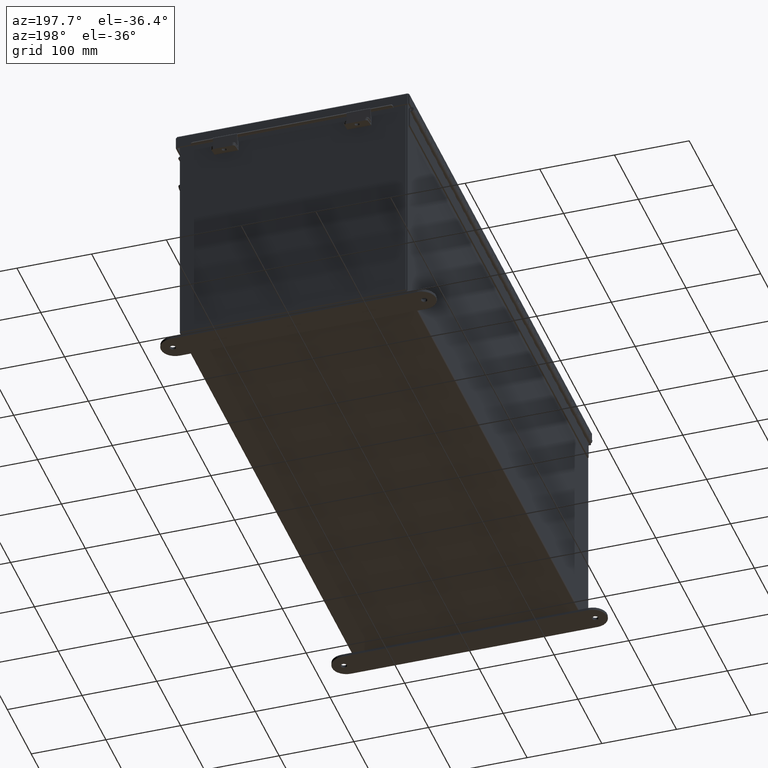
[diagram: clean part render]
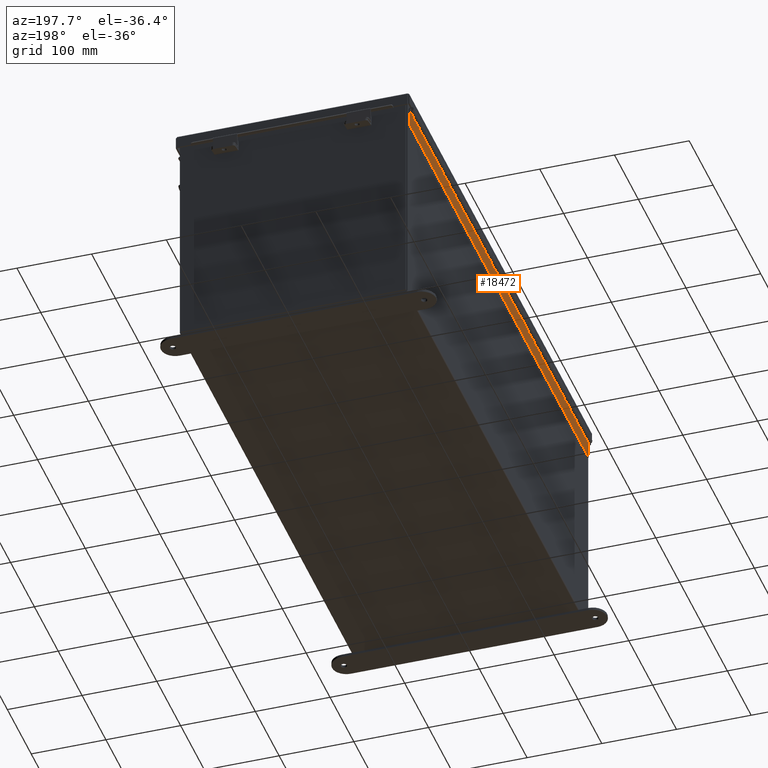
[diagram: same view with one face highlighted and labeled with its STEP entity id]
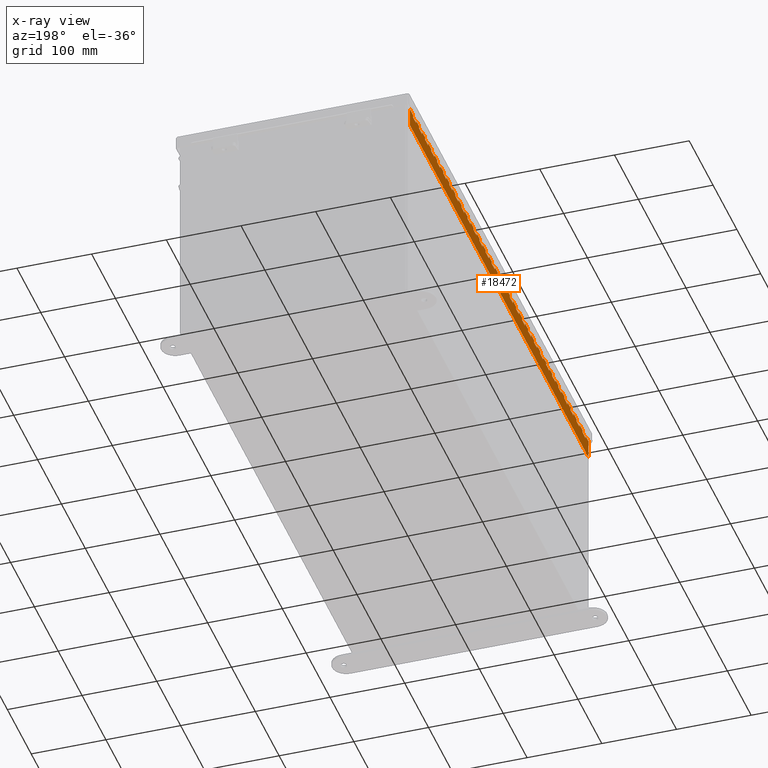
[diagram: x-ray of the same camera — body ghosted, the highlighted face saturated]
A machine part, auxiliary view. The second image highlights one B-rep face of the part: STEP entity #18472.
The next image is the same camera in x-ray: the body ghosted, the highlighted face saturated — about 0% of this face is hidden behind the body in this view.
In plain terms, the highlighted planar face has unit normal (1, -0, 0).
Its self-contained STEP definition (entity closure, byte-faithful):
#23 = CARTESIAN_POINT ( 'NONE',  ( 0.2730000000000000200, 11.99999999999999800, 0.0000000000000000000 ) ) ;
#64 = CARTESIAN_POINT ( 'NONE',  ( 0.1365000000000000100, 0.0000000000000000000, 1.707404996040164500E-017 ) ) ;
#114 = CARTESIAN_POINT ( 'NONE',  ( 0.1365000000000000100, 27.49999999999999600, 1.707404996040164500E-017 ) ) ;
#128 = CARTESIAN_POINT ( 'NONE',  ( 0.1365000000000000100, 0.0000000000000000000, 1.707404996040164500E-017 ) ) ;
#141 = VECTOR ( 'NONE', #9780, 39.37007874015748100 ) ;
#183 = VECTOR ( 'NONE', #9010, 39.37007874015748100 ) ;
#193 = CARTESIAN_POINT ( 'NONE',  ( 0.1365000000000000100, 3.499999999999995100, 1.707404996040164500E-017 ) ) ;
#196 = DIRECTION ( 'NONE',  ( -1.000000000000000000, 0.0000000000000000000, 0.0000000000000000000 ) ) ;
#201 = VERTEX_POINT ( 'NONE', #24191 ) ;
#212 = EDGE_CURVE ( 'NONE', #7802, #22741, #10706, .T. ) ;
#238 = ORIENTED_EDGE ( 'NONE', *, *, #1018, .F. ) ;
#283 = CARTESIAN_POINT ( 'NONE',  ( 0.2730000000000000200, 8.499999999999994700, 0.0000000000000000000 ) ) ;
#285 = LINE ( 'NONE', #11845, #4454 ) ;
#290 = LINE ( 'NONE', #9639, #21258 ) ;
#365 = ORIENTED_EDGE ( 'NONE', *, *, #20023, .F. ) ;
#372 = CARTESIAN_POINT ( 'NONE',  ( 0.1365000000000000100, 0.4999999999999973900, 1.707404996040164500E-017 ) ) ;
#400 = DIRECTION ( 'NONE',  ( -1.000000000000000000, 0.0000000000000000000, 0.0000000000000000000 ) ) ;
#410 = EDGE_CURVE ( 'NONE', #24166, #16779, #21800, .T. ) ;
#423 = VECTOR ( 'NONE', #19034, 39.37007874015748100 ) ;
#430 = DIRECTION ( 'NONE',  ( -1.000000000000000000, 0.0000000000000000000, 0.0000000000000000000 ) ) ;
#483 = PLANE ( 'NONE',  #8772 ) ;
#495 = VECTOR ( 'NONE', #1629, 39.37007874015748100 ) ;
#498 = VERTEX_POINT ( 'NONE', #2887 ) ;
#524 = VECTOR ( 'NONE', #5454, 39.37007874015748100 ) ;
#532 = CARTESIAN_POINT ( 'NONE',  ( 0.1365000000000000100, 0.0000000000000000000, 1.707404996040164500E-017 ) ) ;
#566 = CARTESIAN_POINT ( 'NONE',  ( 0.1365000000000000100, 0.0000000000000000000, 1.707404996040164500E-017 ) ) ;
#591 = VECTOR ( 'NONE', #24894, 39.37007874015748100 ) ;
#600 = CARTESIAN_POINT ( 'NONE',  ( 0.0000000000000000000, 28.49999999999999600, 0.0000000000000000000 ) ) ;
#607 = DIRECTION ( 'NONE',  ( -1.000000000000000000, -0.0000000000000000000, -0.0000000000000000000 ) ) ;
#614 = LINE ( 'NONE', #17995, #1251 ) ;
#672 = EDGE_CURVE ( 'NONE', #21508, #15758, #16061, .T. ) ;
#684 = CARTESIAN_POINT ( 'NONE',  ( 0.1365000000000000100, 0.0000000000000000000, 1.707404996040164500E-017 ) ) ;
#742 = CARTESIAN_POINT ( 'NONE',  ( 0.0000000000000000000, 7.499999999999995600, 0.0000000000000000000 ) ) ;
#752 = VERTEX_POINT ( 'NONE', #1613 ) ;
#759 = EDGE_CURVE ( 'NONE', #7583, #15197, #11269, .T. ) ;
#779 = VECTOR ( 'NONE', #19541, 39.37007874015748100 ) ;
#786 = VECTOR ( 'NONE', #1530, 39.37007874015748100 ) ;
#793 = CARTESIAN_POINT ( 'NONE',  ( 0.2730000000000000200, 3.999999999999996900, 0.0000000000000000000 ) ) ;
#887 = CARTESIAN_POINT ( 'NONE',  ( 0.0000000000000000000, 23.49999999999999600, 0.0000000000000000000 ) ) ;
#905 = VERTEX_POINT ( 'NONE', #5121 ) ;
#997 = ORIENTED_EDGE ( 'NONE', *, *, #14372, .F. ) ;
#1018 = EDGE_CURVE ( 'NONE', #22106, #21472, #22385, .T. ) ;
#1033 = VECTOR ( 'NONE', #15963, 39.37007874015748100 ) ;
#1044 = LINE ( 'NONE', #12002, #6458 ) ;
#1050 = EDGE_CURVE ( 'NONE', #6966, #12344, #10943, .T. ) ;
#1157 = EDGE_CURVE ( 'NONE', #26342, #14624, #25249, .T. ) ;
#1204 = VERTEX_POINT ( 'NONE', #12502 ) ;
#1219 = VERTEX_POINT ( 'NONE', #24691 ) ;
#1251 = VECTOR ( 'NONE', #13901, 39.37007874015748100 ) ;
#1279 = VERTEX_POINT ( 'NONE', #18805 ) ;
#1353 = VECTOR ( 'NONE', #9003, 39.37007874015748100 ) ;
#1369 = CARTESIAN_POINT ( 'NONE',  ( 0.0000000000000000000, 7.999999999999997300, 0.0000000000000000000 ) ) ;
#1397 = EDGE_CURVE ( 'NONE', #21190, #1219, #18211, .T. ) ;
#1414 = DIRECTION ( 'NONE',  ( 0.0000000000000000000, 1.000000000000000000, 0.0000000000000000000 ) ) ;
#1441 = DIRECTION ( 'NONE',  ( 0.0000000000000000000, 1.000000000000000000, 0.0000000000000000000 ) ) ;
#1510 = VERTEX_POINT ( 'NONE', #25255 ) ;
#1525 = CARTESIAN_POINT ( 'NONE',  ( 0.2730000000000000200, 8.999999999999996400, 0.0000000000000000000 ) ) ;
#1530 = DIRECTION ( 'NONE',  ( 0.0000000000000000000, 1.000000000000000000, 0.0000000000000000000 ) ) ;
#1555 = CARTESIAN_POINT ( 'NONE',  ( 0.1365000000000000100, 0.0000000000000000000, 1.707404996040164500E-017 ) ) ;
#1562 = DIRECTION ( 'NONE',  ( -1.000000000000000000, 0.0000000000000000000, 0.0000000000000000000 ) ) ;
#1563 = ORIENTED_EDGE ( 'NONE', *, *, #14383, .F. ) ;
#1596 = CARTESIAN_POINT ( 'NONE',  ( 0.2730000000000000200, 13.99999999999999600, 0.0000000000000000000 ) ) ;
#1613 = CARTESIAN_POINT ( 'NONE',  ( 0.2730000000000000200, 9.499999999999996400, 0.0000000000000000000 ) ) ;
#1629 = DIRECTION ( 'NONE',  ( -1.000000000000000000, 0.0000000000000000000, 0.0000000000000000000 ) ) ;
#1670 = VECTOR ( 'NONE', #16341, 39.37007874015748100 ) ;
#1699 = CARTESIAN_POINT ( 'NONE',  ( 0.1365000000000000100, 3.999999999999996900, 1.707404996040164500E-017 ) ) ;
#1729 = EDGE_CURVE ( 'NONE', #24645, #20501, #26168, .T. ) ;
#1813 = LINE ( 'NONE', #23782, #17358 ) ;
#1830 = VERTEX_POINT ( 'NONE', #18112 ) ;
#1908 = DIRECTION ( 'NONE',  ( 0.0000000000000000000, 1.000000000000000000, 0.0000000000000000000 ) ) ;
#1947 = ORIENTED_EDGE ( 'NONE', *, *, #11234, .T. ) ;
#1975 = VERTEX_POINT ( 'NONE', #4494 ) ;
#2002 = VECTOR ( 'NONE', #3098, 39.37007874015748100 ) ;
#2020 = ORIENTED_EDGE ( 'NONE', *, *, #12961, .F. ) ;
#2055 = CARTESIAN_POINT ( 'NONE',  ( 0.1365000000000000100, 19.99999999999999600, 1.707404996040164500E-017 ) ) ;
#2105 = DIRECTION ( 'NONE',  ( 0.0000000000000000000, 1.000000000000000000, 0.0000000000000000000 ) ) ;
#2122 = ORIENTED_EDGE ( 'NONE', *, *, #10310, .F. ) ;
#2189 = LINE ( 'NONE', #4288, #23153 ) ;
#2202 = ORIENTED_EDGE ( 'NONE', *, *, #19790, .T. ) ;
#2204 = CARTESIAN_POINT ( 'NONE',  ( 0.2730000000000000200, 13.49999999999999500, 0.0000000000000000000 ) ) ;
#2213 = DIRECTION ( 'NONE',  ( -1.000000000000000000, 0.0000000000000000000, 0.0000000000000000000 ) ) ;
#2225 = EDGE_CURVE ( 'NONE', #24310, #15758, #9941, .T. ) ;
#2238 = DIRECTION ( 'NONE',  ( -1.000000000000000000, 0.0000000000000000000, 0.0000000000000000000 ) ) ;
#2242 = LINE ( 'NONE', #742, #13002 ) ;
#2301 = CARTESIAN_POINT ( 'NONE',  ( 0.1365000000000000100, 17.00000000000000000, 1.707404996040164500E-017 ) ) ;
#2304 = DIRECTION ( 'NONE',  ( 0.0000000000000000000, 1.000000000000000000, 0.0000000000000000000 ) ) ;
#2345 = CARTESIAN_POINT ( 'NONE',  ( 0.2730000000000000200, -9.000000000000000000, 0.0000000000000000000 ) ) ;
#2394 = ORIENTED_EDGE ( 'NONE', *, *, #7866, .T. ) ;
#2459 = DIRECTION ( 'NONE',  ( 0.0000000000000000000, 1.000000000000000000, 0.0000000000000000000 ) ) ;
#2475 = VECTOR ( 'NONE', #2972, 39.37007874015748100 ) ;
#2510 = ORIENTED_EDGE ( 'NONE', *, *, #3790, .T. ) ;
#2528 = DIRECTION ( 'NONE',  ( -1.000000000000000000, 0.0000000000000000000, -0.0000000000000000000 ) ) ;
#2535 = CARTESIAN_POINT ( 'NONE',  ( 0.1365000000000000100, 2.499999999999995600, 1.707404996040164500E-017 ) ) ;
#2543 = CARTESIAN_POINT ( 'NONE',  ( 0.2730000000000000200, 18.99999999999999600, 0.0000000000000000000 ) ) ;
#2552 = VECTOR ( 'NONE', #11285, 39.37007874015748100 ) ;
#2563 = ORIENTED_EDGE ( 'NONE', *, *, #12046, .F. ) ;
#2566 = DIRECTION ( 'NONE',  ( -1.000000000000000000, 0.0000000000000000000, 0.0000000000000000000 ) ) ;
#2569 = ORIENTED_EDGE ( 'NONE', *, *, #8682, .T. ) ;
#2582 = EDGE_CURVE ( 'NONE', #10661, #7802, #13062, .T. ) ;
#2585 = DIRECTION ( 'NONE',  ( 0.0000000000000000000, 1.000000000000000000, 0.0000000000000000000 ) ) ;
#2587 = VECTOR ( 'NONE', #4063, 39.37007874015748100 ) ;
#2607 = CARTESIAN_POINT ( 'NONE',  ( 0.2730000000000000200, 24.99999999999999600, 0.0000000000000000000 ) ) ;
#2616 = ORIENTED_EDGE ( 'NONE', *, *, #1397, .F. ) ;
#2642 = DIRECTION ( 'NONE',  ( -1.000000000000000000, 0.0000000000000000000, 0.0000000000000000000 ) ) ;
#2654 = EDGE_CURVE ( 'NONE', #1830, #1204, #16569, .T. ) ;
#2718 = DIRECTION ( 'NONE',  ( 0.0000000000000000000, 1.000000000000000000, 0.0000000000000000000 ) ) ;
#2750 = EDGE_CURVE ( 'NONE', #905, #8851, #19419, .T. ) ;
#2772 = ORIENTED_EDGE ( 'NONE', *, *, #17096, .F. ) ;
#2778 = DIRECTION ( 'NONE',  ( -1.000000000000000000, 0.0000000000000000000, 0.0000000000000000000 ) ) ;
#2799 = ORIENTED_EDGE ( 'NONE', *, *, #19983, .T. ) ;
#2876 = CARTESIAN_POINT ( 'NONE',  ( 0.0000000000000000000, 9.999999999999998200, 0.0000000000000000000 ) ) ;
#2885 = ORIENTED_EDGE ( 'NONE', *, *, #25840, .T. ) ;
#2887 = CARTESIAN_POINT ( 'NONE',  ( 0.1365000000000000100, 13.49999999999999500, 1.707404996040164500E-017 ) ) ;
#2906 = ORIENTED_EDGE ( 'NONE', *, *, #9775, .F. ) ;
#2940 = DIRECTION ( 'NONE',  ( 0.0000000000000000000, 1.000000000000000000, 0.0000000000000000000 ) ) ;
#2952 = CARTESIAN_POINT ( 'NONE',  ( 0.2730000000000000200, 15.99999999999999800, 0.0000000000000000000 ) ) ;
#2972 = DIRECTION ( 'NONE',  ( -1.000000000000000000, 0.0000000000000000000, 0.0000000000000000000 ) ) ;
#2974 = VECTOR ( 'NONE', #12665, 39.37007874015748100 ) ;
#3027 = VECTOR ( 'NONE', #3329, 39.37007874015748100 ) ;
#3058 = DIRECTION ( 'NONE',  ( 0.0000000000000000000, 1.000000000000000000, 0.0000000000000000000 ) ) ;
#3059 = EDGE_CURVE ( 'NONE', #22505, #15139, #22596, .T. ) ;
#3063 = LINE ( 'NONE', #9432, #7801 ) ;
#3062 = DIRECTION ( 'NONE',  ( 0.0000000000000000000, 1.000000000000000000, 0.0000000000000000000 ) ) ;
#3067 = VERTEX_POINT ( 'NONE', #17520 ) ;
#3069 = ORIENTED_EDGE ( 'NONE', *, *, #15030, .T. ) ;
#3098 = DIRECTION ( 'NONE',  ( -1.000000000000000000, 0.0000000000000000000, 0.0000000000000000000 ) ) ;
#3107 = ORIENTED_EDGE ( 'NONE', *, *, #11207, .F. ) ;
#3164 = CARTESIAN_POINT ( 'NONE',  ( 0.1365000000000000100, 0.0000000000000000000, 1.707404996040164500E-017 ) ) ;
#3172 = ORIENTED_EDGE ( 'NONE', *, *, #15416, .F. ) ;
#3185 = VECTOR ( 'NONE', #24491, 39.37007874015748100 ) ;
#3202 = EDGE_CURVE ( 'NONE', #4678, #17330, #14633, .T. ) ;
#3207 = ORIENTED_EDGE ( 'NONE', *, *, #18357, .F. ) ;
#3210 = CARTESIAN_POINT ( 'NONE',  ( 0.2730000000000000200, -20.00000000000000000, 0.0000000000000000000 ) ) ;
#3222 = DIRECTION ( 'NONE',  ( 0.0000000000000000000, 1.000000000000000000, 0.0000000000000000000 ) ) ;
#3246 = VECTOR ( 'NONE', #5756, 39.37007874015748100 ) ;
#3257 = LINE ( 'NONE', #12116, #2587 ) ;
#3271 = CARTESIAN_POINT ( 'NONE',  ( 0.0000000000000000000, 25.99999999999999600, 0.0000000000000000000 ) ) ;
#3278 = ORIENTED_EDGE ( 'NONE', *, *, #25704, .T. ) ;
#3323 = EDGE_CURVE ( 'NONE', #6259, #201, #22264, .T. ) ;
#3329 = DIRECTION ( 'NONE',  ( 0.0000000000000000000, 1.000000000000000000, 0.0000000000000000000 ) ) ;
#3388 = VERTEX_POINT ( 'NONE', #20526 ) ;
#3416 = DIRECTION ( 'NONE',  ( -1.000000000000000000, 0.0000000000000000000, 0.0000000000000000000 ) ) ;
#3422 = DIRECTION ( 'NONE',  ( 0.0000000000000000000, 1.000000000000000000, 0.0000000000000000000 ) ) ;
#3428 = VECTOR ( 'NONE', #400, 39.37007874015748100 ) ;
#3434 = ORIENTED_EDGE ( 'NONE', *, *, #17407, .T. ) ;
#3448 = VERTEX_POINT ( 'NONE', #20715 ) ;
#3487 = LINE ( 'NONE', #25744, #13589 ) ;
#3492 = VECTOR ( 'NONE', #10889, 39.37007874015748100 ) ;
#3511 = VECTOR ( 'NONE', #7274, 39.37007874015748100 ) ;
#3554 = ORIENTED_EDGE ( 'NONE', *, *, #25508, .F. ) ;
#3572 = VECTOR ( 'NONE', #21454, 39.37007874015748100 ) ;
#3620 = VECTOR ( 'NONE', #2213, 39.37007874015748100 ) ;
#3672 = EDGE_CURVE ( 'NONE', #5359, #3448, #13319, .T. ) ;
#3673 = CARTESIAN_POINT ( 'NONE',  ( 0.0000000000000000000, 28.99999999999999600, 0.0000000000000000000 ) ) ;
#3683 = CARTESIAN_POINT ( 'NONE',  ( 0.2730000000000000200, 5.499999999999997300, 0.0000000000000000000 ) ) ;
#3715 = LINE ( 'NONE', #15095, #24679 ) ;
#3767 = VERTEX_POINT ( 'NONE', #1525 ) ;
#3771 = LINE ( 'NONE', #9398, #3511 ) ;
#3790 = EDGE_CURVE ( 'NONE', #18712, #16209, #15539, .T. ) ;
#3843 = VECTOR ( 'NONE', #16856, 39.37007874015748100 ) ;
#3846 = VERTEX_POINT ( 'NONE', #1699 ) ;
#3900 = CARTESIAN_POINT ( 'NONE',  ( 0.1365000000000000100, 2.999999999999997300, 1.707404996040164500E-017 ) ) ;
#3928 = LINE ( 'NONE', #17340, #24891 ) ;
#3954 = LINE ( 'NONE', #23238, #9338 ) ;
#3982 = EDGE_CURVE ( 'NONE', #23074, #14501, #11728, .T. ) ;
#4032 = EDGE_CURVE ( 'NONE', #11729, #16795, #16490, .T. ) ;
#4063 = DIRECTION ( 'NONE',  ( 0.0000000000000000000, 1.000000000000000000, 0.0000000000000000000 ) ) ;
#4072 = VECTOR ( 'NONE', #14561, 39.37007874015748100 ) ;
#4089 = CARTESIAN_POINT ( 'NONE',  ( 0.2730000000000000200, 9.999999999999998200, 0.0000000000000000000 ) ) ;
#4150 = DIRECTION ( 'NONE',  ( -1.000000000000000000, 0.0000000000000000000, 0.0000000000000000000 ) ) ;
#4151 = DIRECTION ( 'NONE',  ( 0.0000000000000000000, 1.000000000000000000, 0.0000000000000000000 ) ) ;
#4196 = VERTEX_POINT ( 'NONE', #793 ) ;
#4201 = EDGE_CURVE ( 'NONE', #13806, #6557, #23481, .T. ) ;
#4216 = EDGE_CURVE ( 'NONE', #14410, #6249, #12021, .T. ) ;
#4288 = CARTESIAN_POINT ( 'NONE',  ( 0.0000000000000000000, 6.499999999999996400, 0.0000000000000000000 ) ) ;
#4291 = CARTESIAN_POINT ( 'NONE',  ( 0.0000000000000000000, 26.49999999999999600, 0.0000000000000000000 ) ) ;
#4343 = CARTESIAN_POINT ( 'NONE',  ( 0.2730000000000000200, -13.00000000000000000, 0.0000000000000000000 ) ) ;
#4372 = LINE ( 'NONE', #21979, #9110 ) ;
#4392 = EDGE_CURVE ( 'NONE', #8481, #15458, #3487, .T. ) ;
#4449 = CARTESIAN_POINT ( 'NONE',  ( 0.2730000000000000200, -8.000000000000000000, 0.0000000000000000000 ) ) ;
#4454 = VECTOR ( 'NONE', #24016, 39.37007874015748100 ) ;
#4473 = VERTEX_POINT ( 'NONE', #15805 ) ;
#4494 = CARTESIAN_POINT ( 'NONE',  ( 0.1365000000000000100, 0.9999999999999992200, 1.707404996040164500E-017 ) ) ;
#4529 = ORIENTED_EDGE ( 'NONE', *, *, #9717, .F. ) ;
#4586 = VERTEX_POINT ( 'NONE', #6095 ) ;
#4619 = CARTESIAN_POINT ( 'NONE',  ( 0.2730000000000000200, -16.00000000000000000, 0.0000000000000000000 ) ) ;
#4631 = CARTESIAN_POINT ( 'NONE',  ( 0.1365000000000000100, 23.49999999999999600, 1.707404996040164500E-017 ) ) ;
#4648 = ORIENTED_EDGE ( 'NONE', *, *, #21415, .T. ) ;
#4668 = ORIENTED_EDGE ( 'NONE', *, *, #13638, .F. ) ;
#4677 = EDGE_CURVE ( 'NONE', #6966, #6344, #12629, .T. ) ;
#4678 = VERTEX_POINT ( 'NONE', #20617 ) ;
#4690 = ORIENTED_EDGE ( 'NONE', *, *, #25077, .T. ) ;
#4713 = VECTOR ( 'NONE', #1908, 39.37007874015748100 ) ;
#4722 = LINE ( 'NONE', #9414, #9441 ) ;
#4749 = EDGE_CURVE ( 'NONE', #8939, #14946, #21542, .T. ) ;
#4809 = VECTOR ( 'NONE', #12126, 39.37007874015748100 ) ;
#4923 = DIRECTION ( 'NONE',  ( -1.000000000000000000, 0.0000000000000000000, 0.0000000000000000000 ) ) ;
#4936 = EDGE_CURVE ( 'NONE', #1204, #24005, #6936, .T. ) ;
#4985 = VERTEX_POINT ( 'NONE', #23702 ) ;
#5032 = ORIENTED_EDGE ( 'NONE', *, *, #20782, .T. ) ;
#5051 = LINE ( 'NONE', #3271, #14535 ) ;
#5073 = ORIENTED_EDGE ( 'NONE', *, *, #16757, .F. ) ;
#5074 = VERTEX_POINT ( 'NONE', #2055 ) ;
#5086 = CARTESIAN_POINT ( 'NONE',  ( 0.1365000000000000100, 0.0000000000000000000, 1.707404996040164500E-017 ) ) ;
#5095 = LINE ( 'NONE', #6300, #3185 ) ;
#5100 = DIRECTION ( 'NONE',  ( -1.000000000000000000, 0.0000000000000000000, 0.0000000000000000000 ) ) ;
#5121 = CARTESIAN_POINT ( 'NONE',  ( 0.1365000000000000100, 23.99999999999999600, 1.707404996040164500E-017 ) ) ;
#5129 = ORIENTED_EDGE ( 'NONE', *, *, #9491, .F. ) ;
#5135 = ORIENTED_EDGE ( 'NONE', *, *, #9816, .F. ) ;
#5170 = DIRECTION ( 'NONE',  ( -1.000000000000000000, 0.0000000000000000000, 0.0000000000000000000 ) ) ;
#5171 = CARTESIAN_POINT ( 'NONE',  ( 0.2730000000000000200, 2.999999999999997300, 0.0000000000000000000 ) ) ;
#5186 = LINE ( 'NONE', #22327, #9929 ) ;
#5293 = DIRECTION ( 'NONE',  ( -1.000000000000000000, 0.0000000000000000000, 0.0000000000000000000 ) ) ;
#5359 = VERTEX_POINT ( 'NONE', #2952 ) ;
#5374 = CARTESIAN_POINT ( 'NONE',  ( 0.1365000000000000100, 8.999999999999996400, 1.707404996040164500E-017 ) ) ;
#5399 = CARTESIAN_POINT ( 'NONE',  ( 0.2730000000000000200, -18.00000000000000000, 0.0000000000000000000 ) ) ;
#5417 = EDGE_CURVE ( 'NONE', #21472, #4678, #17042, .T. ) ;
#5454 = DIRECTION ( 'NONE',  ( -1.000000000000000000, 0.0000000000000000000, 0.0000000000000000000 ) ) ;
#5465 = VERTEX_POINT ( 'NONE', #11345 ) ;
#5513 = EDGE_CURVE ( 'NONE', #10213, #25678, #9750, .T. ) ;
#5556 = CARTESIAN_POINT ( 'NONE',  ( 0.2730000000000000200, 1.499999999999996700, 0.0000000000000000000 ) ) ;
#5626 = CARTESIAN_POINT ( 'NONE',  ( 0.0000000000000000000, 2.499999999999995600, 0.0000000000000000000 ) ) ;
#5641 = VECTOR ( 'NONE', #23113, 39.37007874015748100 ) ;
#5675 = EDGE_CURVE ( 'NONE', #15139, #12327, #6589, .T. ) ;
#5694 = DIRECTION ( 'NONE',  ( 0.0000000000000000000, 1.000000000000000000, 0.0000000000000000000 ) ) ;
#5717 = DIRECTION ( 'NONE',  ( -1.000000000000000000, 0.0000000000000000000, 0.0000000000000000000 ) ) ;
#5756 = DIRECTION ( 'NONE',  ( 0.0000000000000000000, 1.000000000000000000, 0.0000000000000000000 ) ) ;
#5812 = VECTOR ( 'NONE', #2459, 39.37007874015748100 ) ;
#5838 = CARTESIAN_POINT ( 'NONE',  ( 1.136500000000000100, 0.0000000000000000000, 0.0000000000000000000 ) ) ;
#5853 = LINE ( 'NONE', #25104, #423 ) ;
#5859 = ORIENTED_EDGE ( 'NONE', *, *, #4749, .F. ) ;
#5874 = LINE ( 'NONE', #600, #21414 ) ;
#5904 = VECTOR ( 'NONE', #5717, 39.37007874015748100 ) ;
#6000 = VECTOR ( 'NONE', #2566, 39.37007874015748100 ) ;
#6038 = ORIENTED_EDGE ( 'NONE', *, *, #9047, .T. ) ;
#6049 = VERTEX_POINT ( 'NONE', #7973 ) ;
#6076 = ORIENTED_EDGE ( 'NONE', *, *, #10054, .F. ) ;
#6095 = CARTESIAN_POINT ( 'NONE',  ( 0.2730000000000000200, 0.9999999999999992200, 0.0000000000000000000 ) ) ;
#6119 = VECTOR ( 'NONE', #2940, 39.37007874015748100 ) ;
#6176 = VECTOR ( 'NONE', #21615, 39.37007874015748100 ) ;
#6186 = EDGE_CURVE ( 'NONE', #19052, #18419, #11303, .T. ) ;
#6187 = DIRECTION ( 'NONE',  ( 0.0000000000000000000, 1.000000000000000000, 0.0000000000000000000 ) ) ;
#6196 = LINE ( 'NONE', #25616, #779 ) ;
#6234 = ORIENTED_EDGE ( 'NONE', *, *, #4032, .T. ) ;
#6249 = VERTEX_POINT ( 'NONE', #4631 ) ;
#6259 = VERTEX_POINT ( 'NONE', #20832 ) ;
#6273 = LINE ( 'NONE', #12867, #16394 ) ;
#6300 = CARTESIAN_POINT ( 'NONE',  ( 0.0000000000000000000, 13.49999999999999500, 0.0000000000000000000 ) ) ;
#6344 = VERTEX_POINT ( 'NONE', #6744 ) ;
#6372 = VECTOR ( 'NONE', #18453, 39.37007874015748100 ) ;
#6375 = CARTESIAN_POINT ( 'NONE',  ( 0.2730000000000000200, 7.999999999999997300, 0.0000000000000000000 ) ) ;
#6383 = EDGE_CURVE ( 'NONE', #19590, #8851, #16990, .T. ) ;
#6385 = LINE ( 'NONE', #4619, #16504 ) ;
#6441 = VERTEX_POINT ( 'NONE', #13756 ) ;
#6458 = VECTOR ( 'NONE', #22144, 39.37007874015748100 ) ;
#6462 = CARTESIAN_POINT ( 'NONE',  ( 0.1365000000000000100, 7.499999999999995600, 1.707404996040164500E-017 ) ) ;
#6465 = LINE ( 'NONE', #12826, #11192 ) ;
#6515 = ORIENTED_EDGE ( 'NONE', *, *, #12754, .F. ) ;
#6544 = CARTESIAN_POINT ( 'NONE',  ( 1.136499999999999800, 29.50000000000000000, 0.0000000000000000000 ) ) ;
#6557 = VERTEX_POINT ( 'NONE', #23 ) ;
#6579 = VECTOR ( 'NONE', #12278, 39.37007874015748100 ) ;
#6581 = VECTOR ( 'NONE', #3422, 39.37007874015748100 ) ;
#6589 = LINE ( 'NONE', #14234, #13213 ) ;
#6593 = VERTEX_POINT ( 'NONE', #114 ) ;
#6627 = ORIENTED_EDGE ( 'NONE', *, *, #14661, .F. ) ;
#6646 = ORIENTED_EDGE ( 'NONE', *, *, #22990, .F. ) ;
#6649 = DIRECTION ( 'NONE',  ( 0.0000000000000000000, 1.000000000000000000, 0.0000000000000000000 ) ) ;
#6659 = EDGE_CURVE ( 'NONE', #22853, #12661, #21446, .T. ) ;
#6669 = VECTOR ( 'NONE', #7014, 39.37007874015748100 ) ;
#6710 = ORIENTED_EDGE ( 'NONE', *, *, #23636, .F. ) ;
#6744 = CARTESIAN_POINT ( 'NONE',  ( 0.2730000000000000200, 19.99999999999999600, 0.0000000000000000000 ) ) ;
#6936 = LINE ( 'NONE', #23538, #17067 ) ;
#6957 = EDGE_CURVE ( 'NONE', #12661, #498, #8409, .T. ) ;
#6966 = VERTEX_POINT ( 'NONE', #11460 ) ;
#6978 = ORIENTED_EDGE ( 'NONE', *, *, #21133, .T. ) ;
#6990 = EDGE_CURVE ( 'NONE', #15812, #15188, #18560, .T. ) ;
#7014 = DIRECTION ( 'NONE',  ( -1.000000000000000000, 0.0000000000000000000, 0.0000000000000000000 ) ) ;
#7078 = LINE ( 'NONE', #24457, #1670 ) ;
#7113 = CARTESIAN_POINT ( 'NONE',  ( 0.2730000000000000200, -15.00000000000000000, 0.0000000000000000000 ) ) ;
#7119 = EDGE_CURVE ( 'NONE', #13247, #12296, #20784, .T. ) ;
#7126 = CARTESIAN_POINT ( 'NONE',  ( 0.2730000000000000200, 0.0000000000000000000, 0.0000000000000000000 ) ) ;
#7128 = DIRECTION ( 'NONE',  ( 0.0000000000000000000, 1.000000000000000000, 0.0000000000000000000 ) ) ;
#7142 = CARTESIAN_POINT ( 'NONE',  ( 0.0000000000000000000, 16.49999999999999600, 0.0000000000000000000 ) ) ;
#7171 = VECTOR ( 'NONE', #21593, 39.37007874015748100 ) ;
#7176 = EDGE_CURVE ( 'NONE', #12348, #22939, #19847, .T. ) ;
#7246 = DIRECTION ( 'NONE',  ( -1.000000000000000000, 0.0000000000000000000, 0.0000000000000000000 ) ) ;
#7273 = DIRECTION ( 'NONE',  ( -1.000000000000000000, 0.0000000000000000000, 0.0000000000000000000 ) ) ;
#7274 = DIRECTION ( 'NONE',  ( 0.0000000000000000000, 1.000000000000000000, 0.0000000000000000000 ) ) ;
#7298 = VECTOR ( 'NONE', #607, 39.37007874015748100 ) ;
#7415 = CARTESIAN_POINT ( 'NONE',  ( 0.2730000000000000200, 28.49999999999999600, 0.0000000000000000000 ) ) ;
#7583 = VERTEX_POINT ( 'NONE', #1596 ) ;
#7675 = ORIENTED_EDGE ( 'NONE', *, *, #10017, .F. ) ;
#7709 = VECTOR ( 'NONE', #4151, 39.37007874015748100 ) ;
#7744 = VERTEX_POINT ( 'NONE', #4089 ) ;
#7790 = DIRECTION ( 'NONE',  ( 0.0000000000000000000, 1.000000000000000000, 0.0000000000000000000 ) ) ;
#7801 = VECTOR ( 'NONE', #23632, 39.37007874015748100 ) ;
#7802 = VERTEX_POINT ( 'NONE', #16476 ) ;
#7866 = EDGE_CURVE ( 'NONE', #25716, #20149, #13800, .T. ) ;
#7893 = ORIENTED_EDGE ( 'NONE', *, *, #5675, .F. ) ;
#7935 = CARTESIAN_POINT ( 'NONE',  ( 0.2730000000000000200, -2.000000000000000000, 0.0000000000000000000 ) ) ;
#7969 = CARTESIAN_POINT ( 'NONE',  ( 0.0000000000000000000, 11.49999999999999600, 0.0000000000000000000 ) ) ;
#7973 = CARTESIAN_POINT ( 'NONE',  ( 0.2730000000000000200, 4.499999999999998200, 0.0000000000000000000 ) ) ;
#8052 = VECTOR ( 'NONE', #2778, 39.37007874015748100 ) ;
#8053 = LINE ( 'NONE', #21443, #17570 ) ;
#8054 = CARTESIAN_POINT ( 'NONE',  ( 0.0000000000000000000, 24.99999999999999600, 0.0000000000000000000 ) ) ;
#8070 = VECTOR ( 'NONE', #21353, 39.37007874015748100 ) ;
#8106 = CARTESIAN_POINT ( 'NONE',  ( 0.2730000000000000200, 10.99999999999999800, 0.0000000000000000000 ) ) ;
#8213 = VECTOR ( 'NONE', #7273, 39.37007874015748100 ) ;
#8273 = CARTESIAN_POINT ( 'NONE',  ( 0.1365000000000000100, 17.99999999999999600, 1.707404996040164500E-017 ) ) ;
#8275 = VECTOR ( 'NONE', #18650, 39.37007874015748100 ) ;
#8277 = CARTESIAN_POINT ( 'NONE',  ( 0.2730000000000000200, -23.00000000000000000, 0.0000000000000000000 ) ) ;
#8317 = ORIENTED_EDGE ( 'NONE', *, *, #3202, .F. ) ;
#8319 = LINE ( 'NONE', #3164, #8965 ) ;
#8358 = CARTESIAN_POINT ( 'NONE',  ( 0.2730000000000000200, 7.499999999999995600, 0.0000000000000000000 ) ) ;
#8395 = CARTESIAN_POINT ( 'NONE',  ( 0.2730000000000000200, 25.50000000000000000, 0.0000000000000000000 ) ) ;
#8409 = LINE ( 'NONE', #19436, #3027 ) ;
#8433 = CARTESIAN_POINT ( 'NONE',  ( 0.0000000000000000000, 18.49999999999999600, 0.0000000000000000000 ) ) ;
#8481 = VERTEX_POINT ( 'NONE', #8395 ) ;
#8555 = ORIENTED_EDGE ( 'NONE', *, *, #9967, .F. ) ;
#8570 = CARTESIAN_POINT ( 'NONE',  ( 0.2730000000000000200, 12.49999999999999600, 0.0000000000000000000 ) ) ;
#8590 = DIRECTION ( 'NONE',  ( 0.0000000000000000000, 1.000000000000000000, 0.0000000000000000000 ) ) ;
#8606 = CARTESIAN_POINT ( 'NONE',  ( 0.0000000000000000000, 12.49999999999999600, 0.0000000000000000000 ) ) ;
#8609 = EDGE_CURVE ( 'NONE', #26297, #11031, #23640, .T. ) ;
#8682 = EDGE_CURVE ( 'NONE', #13247, #17440, #6196, .T. ) ;
#8759 = CARTESIAN_POINT ( 'NONE',  ( 0.2730000000000000200, -2.999999999999999600, 0.0000000000000000000 ) ) ;
#8772 = AXIS2_PLACEMENT_3D ( 'NONE', #6544, #14679, #2528 ) ;
#8851 = VERTEX_POINT ( 'NONE', #22039 ) ;
#8911 = VERTEX_POINT ( 'NONE', #193 ) ;
#8914 = VECTOR ( 'NONE', #2105, 39.37007874015748100 ) ;
#8916 = DIRECTION ( 'NONE',  ( -1.000000000000000000, 0.0000000000000000000, 0.0000000000000000000 ) ) ;
#8919 = ORIENTED_EDGE ( 'NONE', *, *, #23343, .T. ) ;
#8920 = LINE ( 'NONE', #16613, #8275 ) ;
#8927 = CARTESIAN_POINT ( 'NONE',  ( 0.0000000000000000000, 15.49999999999999600, 0.0000000000000000000 ) ) ;
#8939 = VERTEX_POINT ( 'NONE', #10507 ) ;
#8965 = VECTOR ( 'NONE', #3062, 39.37007874015748100 ) ;
#8966 = CARTESIAN_POINT ( 'NONE',  ( 0.1365000000000000100, 0.0000000000000000000, 1.707404996040164500E-017 ) ) ;
#9003 = DIRECTION ( 'NONE',  ( 0.0000000000000000000, 1.000000000000000000, 0.0000000000000000000 ) ) ;
#9010 = DIRECTION ( 'NONE',  ( -1.000000000000000000, 0.0000000000000000000, 0.0000000000000000000 ) ) ;
#9030 = DIRECTION ( 'NONE',  ( 0.0000000000000000000, 1.000000000000000000, 0.0000000000000000000 ) ) ;
#9047 = EDGE_CURVE ( 'NONE', #22505, #10452, #13428, .T. ) ;
#9077 = VECTOR ( 'NONE', #18552, 39.37007874015748100 ) ;
#9110 = VECTOR ( 'NONE', #11838, 39.37007874015748100 ) ;
#9123 = EDGE_CURVE ( 'NONE', #9215, #7583, #17567, .T. ) ;
#9159 = EDGE_CURVE ( 'NONE', #26080, #25451, #21702, .T. ) ;
#9207 = CARTESIAN_POINT ( 'NONE',  ( 0.1365000000000000100, 0.0000000000000000000, 1.707404996040164500E-017 ) ) ;
#9215 = VERTEX_POINT ( 'NONE', #2204 ) ;
#9235 = CARTESIAN_POINT ( 'NONE',  ( 0.1365000000000000100, 19.49999999999999600, 1.707404996040164500E-017 ) ) ;
#9243 = CARTESIAN_POINT ( 'NONE',  ( 0.1365000000000000100, 13.99999999999999600, 1.707404996040164500E-017 ) ) ;
#9260 = CARTESIAN_POINT ( 'NONE',  ( 0.2730000000000000200, -27.00000000000000000, 0.0000000000000000000 ) ) ;
#9287 = VECTOR ( 'NONE', #2718, 39.37007874015748100 ) ;
#9299 = DIRECTION ( 'NONE',  ( -1.000000000000000000, 0.0000000000000000000, 0.0000000000000000000 ) ) ;
#9338 = VECTOR ( 'NONE', #9030, 39.37007874015748100 ) ;
#9339 = CARTESIAN_POINT ( 'NONE',  ( 0.1365000000000000100, 18.99999999999999600, 1.707404996040164500E-017 ) ) ;
#9345 = EDGE_CURVE ( 'NONE', #8481, #17980, #13101, .T. ) ;
#9350 = CARTESIAN_POINT ( 'NONE',  ( 0.2730000000000000200, 2.499999999999995600, 0.0000000000000000000 ) ) ;
#9365 = ORIENTED_EDGE ( 'NONE', *, *, #410, .F. ) ;
#9387 = EDGE_CURVE ( 'NONE', #10145, #12344, #5853, .T. ) ;
#9398 = CARTESIAN_POINT ( 'NONE',  ( 0.2730000000000000200, -28.00000000000000000, 0.0000000000000000000 ) ) ;
#9414 = CARTESIAN_POINT ( 'NONE',  ( 0.0000000000000000000, 23.99999999999999600, 0.0000000000000000000 ) ) ;
#9432 = CARTESIAN_POINT ( 'NONE',  ( 0.0000000000000000000, 17.00000000000000000, 0.0000000000000000000 ) ) ;
#9441 = VECTOR ( 'NONE', #25673, 39.37007874015748100 ) ;
#9491 = EDGE_CURVE ( 'NONE', #4586, #1975, #3928, .T. ) ;
#9507 = LINE ( 'NONE', #16987, #3492 ) ;
#9535 = ORIENTED_EDGE ( 'NONE', *, *, #9159, .F. ) ;
#9572 = LINE ( 'NONE', #4343, #20370 ) ;
#9621 = LINE ( 'NONE', #14202, #7709 ) ;
#9639 = CARTESIAN_POINT ( 'NONE',  ( 0.0000000000000000000, 19.99999999999999600, 0.0000000000000000000 ) ) ;
#9717 = EDGE_CURVE ( 'NONE', #23074, #6259, #25831, .T. ) ;
#9743 = CARTESIAN_POINT ( 'NONE',  ( 0.1365000000000000100, 0.0000000000000000000, 1.707404996040164500E-017 ) ) ;
#9750 = LINE ( 'NONE', #9743, #15128 ) ;
#9751 = VERTEX_POINT ( 'NONE', #26330 ) ;
#9775 = EDGE_CURVE ( 'NONE', #3846, #16886, #9621, .T. ) ;
#9780 = DIRECTION ( 'NONE',  ( -1.000000000000000000, 0.0000000000000000000, 0.0000000000000000000 ) ) ;
#9791 = LINE ( 'NONE', #1369, #15794 ) ;
#9811 = ORIENTED_EDGE ( 'NONE', *, *, #6990, .F. ) ;
#9816 = EDGE_CURVE ( 'NONE', #10537, #6249, #7078, .T. ) ;
#9857 = ORIENTED_EDGE ( 'NONE', *, *, #3672, .F. ) ;
#9929 = VECTOR ( 'NONE', #6187, 39.37007874015748100 ) ;
#9941 = LINE ( 'NONE', #9207, #25518 ) ;
#9967 = EDGE_CURVE ( 'NONE', #22471, #19300, #19435, .T. ) ;
#9980 = CARTESIAN_POINT ( 'NONE',  ( 0.1365000000000000100, 16.49999999999999600, 1.707404996040164500E-017 ) ) ;
#10005 = ORIENTED_EDGE ( 'NONE', *, *, #1050, .T. ) ;
#10017 = EDGE_CURVE ( 'NONE', #15188, #14884, #20080, .T. ) ;
#10039 = CARTESIAN_POINT ( 'NONE',  ( 0.1365000000000000100, 28.99999999999999600, 1.707404996040164500E-017 ) ) ;
#10054 = EDGE_CURVE ( 'NONE', #752, #7744, #22944, .T. ) ;
#10089 = EDGE_CURVE ( 'NONE', #20025, #24645, #16891, .T. ) ;
#10100 = VERTEX_POINT ( 'NONE', #11201 ) ;
#10132 = EDGE_CURVE ( 'NONE', #3767, #24166, #15602, .T. ) ;
#10145 = VERTEX_POINT ( 'NONE', #9339 ) ;
#10209 = VERTEX_POINT ( 'NONE', #13558 ) ;
#10213 = VERTEX_POINT ( 'NONE', #15612 ) ;
#10229 = DIRECTION ( 'NONE',  ( -1.000000000000000000, 0.0000000000000000000, 0.0000000000000000000 ) ) ;
#10237 = VECTOR ( 'NONE', #7128, 39.37007874015748100 ) ;
#10241 = VECTOR ( 'NONE', #11378, 39.37007874015748100 ) ;
#10278 = CARTESIAN_POINT ( 'NONE',  ( 0.1365000000000000100, 12.99999999999999800, 1.707404996040164500E-017 ) ) ;
#10310 = EDGE_CURVE ( 'NONE', #18324, #1510, #17201, .T. ) ;
#10315 = CARTESIAN_POINT ( 'NONE',  ( 0.2730000000000000200, 16.49999999999999600, 0.0000000000000000000 ) ) ;
#10378 = VECTOR ( 'NONE', #12646, 39.37007874015748100 ) ;
#10425 = ORIENTED_EDGE ( 'NONE', *, *, #5417, .F. ) ;
#10447 = CARTESIAN_POINT ( 'NONE',  ( 0.2730000000000000200, 22.00000000000000000, 0.0000000000000000000 ) ) ;
#10452 = VERTEX_POINT ( 'NONE', #22452 ) ;
#10480 = VECTOR ( 'NONE', #22643, 39.37007874015748100 ) ;
#10495 = ORIENTED_EDGE ( 'NONE', *, *, #24590, .F. ) ;
#10507 = CARTESIAN_POINT ( 'NONE',  ( 0.1364999999999999000, 0.0000000000000000000, 0.0000000000000000000 ) ) ;
#10537 = VERTEX_POINT ( 'NONE', #24867 ) ;
#10582 = ORIENTED_EDGE ( 'NONE', *, *, #13701, .T. ) ;
#10656 = EDGE_CURVE ( 'NONE', #10100, #5359, #9572, .T. ) ;
#10661 = VERTEX_POINT ( 'NONE', #10447 ) ;
#10663 = ORIENTED_EDGE ( 'NONE', *, *, #20734, .F. ) ;
#10669 = VECTOR ( 'NONE', #2304, 39.37007874015748100 ) ;
#10672 = DIRECTION ( 'NONE',  ( 0.0000000000000000000, 1.000000000000000000, 0.0000000000000000000 ) ) ;
#10706 = LINE ( 'NONE', #18127, #4713 ) ;
#10744 = CARTESIAN_POINT ( 'NONE',  ( 0.0000000000000000000, 1.499999999999996700, 0.0000000000000000000 ) ) ;
#10747 = VERTEX_POINT ( 'NONE', #2543 ) ;
#10793 = ORIENTED_EDGE ( 'NONE', *, *, #23164, .F. ) ;
#10849 = CARTESIAN_POINT ( 'NONE',  ( 0.0000000000000000000, 14.49999999999999600, 0.0000000000000000000 ) ) ;
#10889 = DIRECTION ( 'NONE',  ( 1.000000000000000000, 0.0000000000000000000, 0.0000000000000000000 ) ) ;
#10933 = CARTESIAN_POINT ( 'NONE',  ( 0.0000000000000000000, 11.99999999999999800, 0.0000000000000000000 ) ) ;
#10943 = LINE ( 'NONE', #25945, #141 ) ;
#10944 = ORIENTED_EDGE ( 'NONE', *, *, #22396, .F. ) ;
#10973 = VERTEX_POINT ( 'NONE', #5838 ) ;
#11006 = LINE ( 'NONE', #8927, #5641 ) ;
#11031 = VERTEX_POINT ( 'NONE', #9980 ) ;
#11062 = CARTESIAN_POINT ( 'NONE',  ( 0.0000000000000000000, 24.49999999999999600, 0.0000000000000000000 ) ) ;
#11090 = CARTESIAN_POINT ( 'NONE',  ( 0.2730000000000000200, 14.99999999999999800, 0.0000000000000000000 ) ) ;
#11160 = LINE ( 'NONE', #13561, #11792 ) ;
#11190 = CARTESIAN_POINT ( 'NONE',  ( 0.0000000000000000000, 20.50000000000000000, 0.0000000000000000000 ) ) ;
#11192 = VECTOR ( 'NONE', #20946, 39.37007874015748100 ) ;
#11201 = CARTESIAN_POINT ( 'NONE',  ( 0.2730000000000000200, 15.49999999999999600, 0.0000000000000000000 ) ) ;
#11207 = EDGE_CURVE ( 'NONE', #1510, #22467, #8920, .T. ) ;
#11234 = EDGE_CURVE ( 'NONE', #19052, #25678, #2242, .T. ) ;
#11269 = LINE ( 'NONE', #15772, #5904 ) ;
#11271 = EDGE_CURVE ( 'NONE', #6557, #3067, #22564, .T. ) ;
#11276 = VECTOR ( 'NONE', #196, 39.37007874015748100 ) ;
#11285 = DIRECTION ( 'NONE',  ( -1.000000000000000000, 0.0000000000000000000, 0.0000000000000000000 ) ) ;
#11292 = LINE ( 'NONE', #13744, #495 ) ;
#11303 = LINE ( 'NONE', #14520, #10669 ) ;
#11345 = CARTESIAN_POINT ( 'NONE',  ( 0.2730000000000000200, 6.999999999999998200, 0.0000000000000000000 ) ) ;
#11347 = LINE ( 'NONE', #11190, #22792 ) ;
#11378 = DIRECTION ( 'NONE',  ( -1.000000000000000000, 0.0000000000000000000, 0.0000000000000000000 ) ) ;
#11418 = ORIENTED_EDGE ( 'NONE', *, *, #9387, .F. ) ;
#11426 = ORIENTED_EDGE ( 'NONE', *, *, #18823, .F. ) ;
#11460 = CARTESIAN_POINT ( 'NONE',  ( 0.2730000000000000200, 19.49999999999999600, 0.0000000000000000000 ) ) ;
#11489 = LINE ( 'NONE', #8966, #6119 ) ;
#11509 = ORIENTED_EDGE ( 'NONE', *, *, #24748, .F. ) ;
#11516 = DIRECTION ( 'NONE',  ( -1.000000000000000000, 0.0000000000000000000, 0.0000000000000000000 ) ) ;
#11543 = VECTOR ( 'NONE', #23438, 39.37007874015748100 ) ;
#11582 = CARTESIAN_POINT ( 'NONE',  ( 0.1365000000000000100, 26.49999999999999600, 1.707404996040164500E-017 ) ) ;
#11595 = VECTOR ( 'NONE', #16464, 39.37007874015748100 ) ;
#11606 = ORIENTED_EDGE ( 'NONE', *, *, #22045, .F. ) ;
#11642 = VECTOR ( 'NONE', #5170, 39.37007874015748100 ) ;
#11728 = LINE ( 'NONE', #4291, #6372 ) ;
#11729 = VERTEX_POINT ( 'NONE', #24943 ) ;
#11792 = VECTOR ( 'NONE', #1441, 39.37007874015748100 ) ;
#11838 = DIRECTION ( 'NONE',  ( -1.000000000000000000, 0.0000000000000000000, 0.0000000000000000000 ) ) ;
#11845 = CARTESIAN_POINT ( 'NONE',  ( 1.136500000000000100, 0.0000000000000000000, 0.0000000000000000000 ) ) ;
#11917 = CARTESIAN_POINT ( 'NONE',  ( 0.1365000000000000100, 0.0000000000000000000, 1.707404996040164500E-017 ) ) ;
#12002 = CARTESIAN_POINT ( 'NONE',  ( 0.2730000000000000200, -22.00000000000000000, 0.0000000000000000000 ) ) ;
#12016 = VECTOR ( 'NONE', #2585, 39.37007874015748100 ) ;
#12021 = LINE ( 'NONE', #887, #6669 ) ;
#12046 = EDGE_CURVE ( 'NONE', #20612, #14568, #614, .T. ) ;
#12092 = LINE ( 'NONE', #20329, #22914 ) ;
#12116 = CARTESIAN_POINT ( 'NONE',  ( 0.1365000000000000100, 0.0000000000000000000, 1.707404996040164500E-017 ) ) ;
#12126 = DIRECTION ( 'NONE',  ( 0.0000000000000000000, 1.000000000000000000, 0.0000000000000000000 ) ) ;
#12175 = VECTOR ( 'NONE', #21323, 39.37007874015748100 ) ;
#12202 = EDGE_CURVE ( 'NONE', #6441, #19300, #2189, .T. ) ;
#12278 = DIRECTION ( 'NONE',  ( 0.0000000000000000000, 1.000000000000000000, 0.0000000000000000000 ) ) ;
#12296 = VERTEX_POINT ( 'NONE', #19235 ) ;
#12327 = VERTEX_POINT ( 'NONE', #17284 ) ;
#12344 = VERTEX_POINT ( 'NONE', #9235 ) ;
#12348 = VERTEX_POINT ( 'NONE', #5171 ) ;
#12392 = EDGE_CURVE ( 'NONE', #18096, #4586, #3771, .T. ) ;
#12420 = CARTESIAN_POINT ( 'NONE',  ( 0.1365000000000000100, 11.49999999999999600, 1.707404996040164500E-017 ) ) ;
#12502 = CARTESIAN_POINT ( 'NONE',  ( 0.2730000000000000200, 20.99999999999999600, 0.0000000000000000000 ) ) ;
#12629 = LINE ( 'NONE', #2345, #17405 ) ;
#12646 = DIRECTION ( 'NONE',  ( -1.000000000000000000, 0.0000000000000000000, 0.0000000000000000000 ) ) ;
#12657 = VECTOR ( 'NONE', #21113, 39.37007874015748100 ) ;
#12661 = VERTEX_POINT ( 'NONE', #10278 ) ;
#12665 = DIRECTION ( 'NONE',  ( 0.0000000000000000000, 1.000000000000000000, 0.0000000000000000000 ) ) ;
#12681 = EDGE_CURVE ( 'NONE', #9215, #498, #5095, .T. ) ;
#12749 = VECTOR ( 'NONE', #16960, 39.37007874015748100 ) ;
#12754 = EDGE_CURVE ( 'NONE', #18712, #12348, #21561, .T. ) ;
#12756 = CARTESIAN_POINT ( 'NONE',  ( 0.1365000000000000100, 0.0000000000000000000, 1.707404996040164500E-017 ) ) ;
#12797 = VECTOR ( 'NONE', #19237, 39.37007874015748100 ) ;
#12826 = CARTESIAN_POINT ( 'NONE',  ( 0.0000000000000000000, 17.49999999999999600, 0.0000000000000000000 ) ) ;
#12867 = CARTESIAN_POINT ( 'NONE',  ( 0.2730000000000000200, -25.00000000000000000, 0.0000000000000000000 ) ) ;
#12950 = VECTOR ( 'NONE', #3222, 39.37007874015748100 ) ;
#12961 = EDGE_CURVE ( 'NONE', #26297, #21519, #17097, .T. ) ;
#12975 = ORIENTED_EDGE ( 'NONE', *, *, #4677, .F. ) ;
#13002 = VECTOR ( 'NONE', #14922, 39.37007874015748100 ) ;
#13062 = LINE ( 'NONE', #24574, #13696 ) ;
#13078 = CARTESIAN_POINT ( 'NONE',  ( 0.2730000000000000200, 17.49999999999999600, 0.0000000000000000000 ) ) ;
#13098 = EDGE_CURVE ( 'NONE', #201, #6593, #24744, .T. ) ;
#13101 = LINE ( 'NONE', #8759, #17246 ) ;
#13140 = VECTOR ( 'NONE', #23615, 39.37007874015748100 ) ;
#13158 = CARTESIAN_POINT ( 'NONE',  ( 0.0000000000000000000, 3.499999999999995100, 0.0000000000000000000 ) ) ;
#13187 = CARTESIAN_POINT ( 'NONE',  ( 0.1365000000000000100, 6.499999999999996400, 1.707404996040164500E-017 ) ) ;
#13213 = VECTOR ( 'NONE', #16201, 39.37007874015748100 ) ;
#13227 = LINE ( 'NONE', #11917, #18642 ) ;
#13247 = VERTEX_POINT ( 'NONE', #3683 ) ;
#13319 = LINE ( 'NONE', #21498, #2552 ) ;
#13355 = ORIENTED_EDGE ( 'NONE', *, *, #15957, .T. ) ;
#13406 = LINE ( 'NONE', #13158, #2002 ) ;
#13420 = CARTESIAN_POINT ( 'NONE',  ( 0.2730000000000000200, -14.00000000000000000, 0.0000000000000000000 ) ) ;
#13428 = LINE ( 'NONE', #10849, #8052 ) ;
#13466 = ORIENTED_EDGE ( 'NONE', *, *, #9123, .F. ) ;
#13497 = VERTEX_POINT ( 'NONE', #16606 ) ;
#13527 = CARTESIAN_POINT ( 'NONE',  ( 0.2730000000000000200, -23.99999999999999600, 0.0000000000000000000 ) ) ;
#13537 = VERTEX_POINT ( 'NONE', #2607 ) ;
#13541 = ORIENTED_EDGE ( 'NONE', *, *, #18612, .F. ) ;
#13558 = CARTESIAN_POINT ( 'NONE',  ( 0.2730000000000000200, 3.499999999999995100, 0.0000000000000000000 ) ) ;
#13561 = CARTESIAN_POINT ( 'NONE',  ( 0.2730000000000000200, -5.000000000000000000, 0.0000000000000000000 ) ) ;
#13589 = VECTOR ( 'NONE', #11516, 39.37007874015748100 ) ;
#13624 = EDGE_CURVE ( 'NONE', #7744, #24310, #18647, .T. ) ;
#13638 = EDGE_CURVE ( 'NONE', #10747, #10145, #23426, .T. ) ;
#13640 = VECTOR ( 'NONE', #8916, 39.37007874015748100 ) ;
#13696 = VECTOR ( 'NONE', #16287, 39.37007874015748100 ) ;
#13701 = EDGE_CURVE ( 'NONE', #1830, #9751, #11347, .T. ) ;
#13721 = ORIENTED_EDGE ( 'NONE', *, *, #12681, .T. ) ;
#13744 = CARTESIAN_POINT ( 'NONE',  ( 0.0000000000000000000, 23.00000000000000000, 0.0000000000000000000 ) ) ;
#13756 = CARTESIAN_POINT ( 'NONE',  ( 0.2730000000000000200, 6.499999999999996400, 0.0000000000000000000 ) ) ;
#13783 = EDGE_CURVE ( 'NONE', #18348, #905, #4722, .T. ) ;
#13800 = LINE ( 'NONE', #8606, #23992 ) ;
#13806 = VERTEX_POINT ( 'NONE', #25767 ) ;
#13828 = ORIENTED_EDGE ( 'NONE', *, *, #6186, .F. ) ;
#13889 = VECTOR ( 'NONE', #25881, 39.37007874015748100 ) ;
#13901 = DIRECTION ( 'NONE',  ( -1.000000000000000000, 0.0000000000000000000, 0.0000000000000000000 ) ) ;
#13907 = CARTESIAN_POINT ( 'NONE',  ( 0.0000000000000000000, 10.99999999999999800, 0.0000000000000000000 ) ) ;
#13926 = ORIENTED_EDGE ( 'NONE', *, *, #5513, .F. ) ;
#13952 = DIRECTION ( 'NONE',  ( 0.0000000000000000000, 1.000000000000000000, 0.0000000000000000000 ) ) ;
#14019 = VECTOR ( 'NONE', #18825, 39.37007874015748100 ) ;
#14086 = LINE ( 'NONE', #13527, #24287 ) ;
#14169 = CARTESIAN_POINT ( 'NONE',  ( 0.1365000000000000100, 15.49999999999999600, 1.707404996040164500E-017 ) ) ;
#14202 = CARTESIAN_POINT ( 'NONE',  ( 0.1365000000000000100, 0.0000000000000000000, 1.707404996040164500E-017 ) ) ;
#14234 = CARTESIAN_POINT ( 'NONE',  ( 0.0000000000000000000, 14.99999999999999800, 0.0000000000000000000 ) ) ;
#14266 = ORIENTED_EDGE ( 'NONE', *, *, #9345, .F. ) ;
#14272 = CARTESIAN_POINT ( 'NONE',  ( 0.0000000000000000000, 8.499999999999994700, 0.0000000000000000000 ) ) ;
#14285 = EDGE_CURVE ( 'NONE', #3067, #20149, #11489, .T. ) ;
#14316 = ORIENTED_EDGE ( 'NONE', *, *, #759, .F. ) ;
#14318 = LINE ( 'NONE', #19403, #3572 ) ;
#14335 = CARTESIAN_POINT ( 'NONE',  ( 0.0000000000000000000, 9.499999999999996400, 0.0000000000000000000 ) ) ;
#14348 = VECTOR ( 'NONE', #20094, 39.37007874015748100 ) ;
#14370 = VECTOR ( 'NONE', #20547, 39.37007874015748100 ) ;
#14372 = EDGE_CURVE ( 'NONE', #26342, #3767, #20386, .T. ) ;
#14383 = EDGE_CURVE ( 'NONE', #14884, #16795, #14318, .T. ) ;
#14410 = VERTEX_POINT ( 'NONE', #23585 ) ;
#14470 = DIRECTION ( 'NONE',  ( 0.0000000000000000000, 1.000000000000000000, 0.0000000000000000000 ) ) ;
#14501 = VERTEX_POINT ( 'NONE', #11582 ) ;
#14520 = CARTESIAN_POINT ( 'NONE',  ( 0.2730000000000000200, -21.00000000000000000, 0.0000000000000000000 ) ) ;
#14535 = VECTOR ( 'NONE', #5293, 39.37007874015748100 ) ;
#14561 = DIRECTION ( 'NONE',  ( -1.000000000000000000, 0.0000000000000000000, 0.0000000000000000000 ) ) ;
#14568 = VERTEX_POINT ( 'NONE', #19925 ) ;
#14624 = VERTEX_POINT ( 'NONE', #20111 ) ;
#14633 = LINE ( 'NONE', #19901, #3246 ) ;
#14661 = EDGE_CURVE ( 'NONE', #14568, #17440, #3257, .T. ) ;
#14679 = DIRECTION ( 'NONE',  ( 0.0000000000000000000, 0.0000000000000000000, -1.000000000000000000 ) ) ;
#14704 = CARTESIAN_POINT ( 'NONE',  ( 0.0000000000000000000, 4.499999999999998200, 0.0000000000000000000 ) ) ;
#14728 = CARTESIAN_POINT ( 'NONE',  ( 0.1365000000000000100, 18.49999999999999600, 1.707404996040164500E-017 ) ) ;
#14779 = VERTEX_POINT ( 'NONE', #15973 ) ;
#14820 = LINE ( 'NONE', #16626, #3428 ) ;
#14884 = VERTEX_POINT ( 'NONE', #8273 ) ;
#14922 = DIRECTION ( 'NONE',  ( -1.000000000000000000, 0.0000000000000000000, 0.0000000000000000000 ) ) ;
#14923 = ORIENTED_EDGE ( 'NONE', *, *, #23021, .F. ) ;
#14936 = DIRECTION ( 'NONE',  ( 0.0000000000000000000, 1.000000000000000000, 0.0000000000000000000 ) ) ;
#14946 = VERTEX_POINT ( 'NONE', #372 ) ;
#14980 = CARTESIAN_POINT ( 'NONE',  ( 0.2730000000000000200, -17.00000000000000000, 0.0000000000000000000 ) ) ;
#14983 = CARTESIAN_POINT ( 'NONE',  ( 0.2730000000000000200, 28.99999999999999600, 0.0000000000000000000 ) ) ;
#15010 = CARTESIAN_POINT ( 'NONE',  ( 0.2730000000000000200, -19.00000000000000000, 0.0000000000000000000 ) ) ;
#15020 = LINE ( 'NONE', #8054, #14370 ) ;
#15030 = EDGE_CURVE ( 'NONE', #26080, #18434, #15242, .T. ) ;
#15076 = CARTESIAN_POINT ( 'NONE',  ( 0.0000000000000000000, 18.99999999999999600, 0.0000000000000000000 ) ) ;
#15095 = CARTESIAN_POINT ( 'NONE',  ( 0.2730000000000000200, -7.000000000000000000, 0.0000000000000000000 ) ) ;
#15128 = VECTOR ( 'NONE', #5694, 39.37007874015748100 ) ;
#15130 = VERTEX_POINT ( 'NONE', #17119 ) ;
#15139 = VERTEX_POINT ( 'NONE', #11090 ) ;
#15188 = VERTEX_POINT ( 'NONE', #19333 ) ;
#15192 = DIRECTION ( 'NONE',  ( 0.0000000000000000000, 1.000000000000000000, 0.0000000000000000000 ) ) ;
#15197 = VERTEX_POINT ( 'NONE', #9243 ) ;
#15242 = LINE ( 'NONE', #10744, #3843 ) ;
#15265 = DIRECTION ( 'NONE',  ( -1.000000000000000000, 0.0000000000000000000, 0.0000000000000000000 ) ) ;
#15303 = CARTESIAN_POINT ( 'NONE',  ( 0.2730000000000000200, -11.99999999999999800, 0.0000000000000000000 ) ) ;
#15320 = DIRECTION ( 'NONE',  ( 0.0000000000000000000, 1.000000000000000000, 0.0000000000000000000 ) ) ;
#15416 = EDGE_CURVE ( 'NONE', #15130, #15458, #21913, .T. ) ;
#15458 = VERTEX_POINT ( 'NONE', #16112 ) ;
#15462 = DIRECTION ( 'NONE',  ( 0.0000000000000000000, 1.000000000000000000, 0.0000000000000000000 ) ) ;
#15517 = CARTESIAN_POINT ( 'NONE',  ( 0.2730000000000000200, -11.00000000000000000, 0.0000000000000000000 ) ) ;
#15539 = LINE ( 'NONE', #5626, #16178 ) ;
#15562 = ORIENTED_EDGE ( 'NONE', *, *, #6957, .F. ) ;
#15567 = ORIENTED_EDGE ( 'NONE', *, *, #21055, .T. ) ;
#15602 = LINE ( 'NONE', #23543, #10241 ) ;
#15612 = CARTESIAN_POINT ( 'NONE',  ( 0.1365000000000000100, 6.999999999999998200, 1.707404996040164500E-017 ) ) ;
#15683 = DIRECTION ( 'NONE',  ( -1.000000000000000000, 0.0000000000000000000, 0.0000000000000000000 ) ) ;
#15715 = ORIENTED_EDGE ( 'NONE', *, *, #19408, .F. ) ;
#15739 = CARTESIAN_POINT ( 'NONE',  ( 0.2730000000000000200, 12.99999999999999800, 0.0000000000000000000 ) ) ;
#15748 = EDGE_CURVE ( 'NONE', #8939, #10973, #9507, .T. ) ;
#15758 = VERTEX_POINT ( 'NONE', #25196 ) ;
#15772 = CARTESIAN_POINT ( 'NONE',  ( 0.0000000000000000000, 13.99999999999999600, 0.0000000000000000000 ) ) ;
#15788 = ORIENTED_EDGE ( 'NONE', *, *, #1157, .T. ) ;
#15794 = VECTOR ( 'NONE', #3416, 39.37007874015748100 ) ;
#15805 = CARTESIAN_POINT ( 'NONE',  ( 0.1365000000000000100, 21.49999999999999600, 1.707404996040164500E-017 ) ) ;
#15812 = VERTEX_POINT ( 'NONE', #13078 ) ;
#15825 = CARTESIAN_POINT ( 'NONE',  ( 0.2730000000000000200, 1.999999999999998400, 0.0000000000000000000 ) ) ;
#15957 = EDGE_CURVE ( 'NONE', #10973, #3388, #285, .T. ) ;
#15963 = DIRECTION ( 'NONE',  ( -1.000000000000000000, 0.0000000000000000000, 0.0000000000000000000 ) ) ;
#15973 = CARTESIAN_POINT ( 'NONE',  ( 0.1365000000000000100, 29.50000000000000000, 1.707404996040164500E-017 ) ) ;
#16061 = LINE ( 'NONE', #17568, #524 ) ;
#16112 = CARTESIAN_POINT ( 'NONE',  ( 0.1365000000000000100, 25.50000000000000000, 1.707404996040164500E-017 ) ) ;
#16145 = VECTOR ( 'NONE', #8590, 39.37007874015748100 ) ;
#16178 = VECTOR ( 'NONE', #15683, 39.37007874015748100 ) ;
#16200 = VECTOR ( 'NONE', #4150, 39.37007874015748100 ) ;
#16201 = DIRECTION ( 'NONE',  ( -1.000000000000000000, 0.0000000000000000000, 0.0000000000000000000 ) ) ;
#16203 = ORIENTED_EDGE ( 'NONE', *, *, #4216, .T. ) ;
#16209 = VERTEX_POINT ( 'NONE', #2535 ) ;
#16246 = VECTOR ( 'NONE', #3058, 39.37007874015748100 ) ;
#16287 = DIRECTION ( 'NONE',  ( -1.000000000000000000, 0.0000000000000000000, 0.0000000000000000000 ) ) ;
#16341 = DIRECTION ( 'NONE',  ( 0.0000000000000000000, 1.000000000000000000, 0.0000000000000000000 ) ) ;
#16345 = ORIENTED_EDGE ( 'NONE', *, *, #10656, .F. ) ;
#16394 = VECTOR ( 'NONE', #14936, 39.37007874015748100 ) ;
#16438 = EDGE_CURVE ( 'NONE', #17980, #17354, #5051, .T. ) ;
#16462 = CARTESIAN_POINT ( 'NONE',  ( 0.2730000000000000200, 26.49999999999999600, 0.0000000000000000000 ) ) ;
#16464 = DIRECTION ( 'NONE',  ( -1.000000000000000000, 0.0000000000000000000, 0.0000000000000000000 ) ) ;
#16476 = CARTESIAN_POINT ( 'NONE',  ( 0.1365000000000000100, 22.00000000000000000, 1.707404996040164500E-017 ) ) ;
#16490 = LINE ( 'NONE', #8433, #10480 ) ;
#16504 = VECTOR ( 'NONE', #6649, 39.37007874015748100 ) ;
#16569 = LINE ( 'NONE', #4449, #5812 ) ;
#16606 = CARTESIAN_POINT ( 'NONE',  ( 0.2730000000000000200, 21.49999999999999600, 0.0000000000000000000 ) ) ;
#16613 = CARTESIAN_POINT ( 'NONE',  ( 0.1365000000000000100, 0.0000000000000000000, 1.707404996040164500E-017 ) ) ;
#16626 = CARTESIAN_POINT ( 'NONE',  ( 0.0000000000000000000, 27.49999999999999600, 0.0000000000000000000 ) ) ;
#16681 = CARTESIAN_POINT ( 'NONE',  ( 0.1365000000000000100, 9.499999999999996400, 1.707404996040164500E-017 ) ) ;
#16724 = ORIENTED_EDGE ( 'NONE', *, *, #18749, .F. ) ;
#16757 = EDGE_CURVE ( 'NONE', #4196, #3846, #25032, .T. ) ;
#16779 = VERTEX_POINT ( 'NONE', #16681 ) ;
#16780 = LINE ( 'NONE', #12756, #12016 ) ;
#16795 = VERTEX_POINT ( 'NONE', #14728 ) ;
#16818 = DIRECTION ( 'NONE',  ( 0.0000000000000000000, 1.000000000000000000, 0.0000000000000000000 ) ) ;
#16856 = DIRECTION ( 'NONE',  ( -1.000000000000000000, 0.0000000000000000000, 0.0000000000000000000 ) ) ;
#16886 = VERTEX_POINT ( 'NONE', #25150 ) ;
#16891 = LINE ( 'NONE', #7126, #16246 ) ;
#16960 = DIRECTION ( 'NONE',  ( -1.000000000000000000, 0.0000000000000000000, 0.0000000000000000000 ) ) ;
#16987 = CARTESIAN_POINT ( 'NONE',  ( 0.0000000000000000000, 0.0000000000000000000, 0.0000000000000000000 ) ) ;
#16990 = LINE ( 'NONE', #11062, #11595 ) ;
#16991 = ORIENTED_EDGE ( 'NONE', *, *, #13624, .F. ) ;
#17042 = LINE ( 'NONE', #21306, #11642 ) ;
#17067 = VECTOR ( 'NONE', #15265, 39.37007874015748100 ) ;
#17096 = EDGE_CURVE ( 'NONE', #24005, #4473, #1813, .T. ) ;
#17097 = LINE ( 'NONE', #15303, #22514 ) ;
#17119 = CARTESIAN_POINT ( 'NONE',  ( 0.1365000000000000100, 24.99999999999999600, 1.707404996040164500E-017 ) ) ;
#17185 = VERTEX_POINT ( 'NONE', #20050 ) ;
#17201 = LINE ( 'NONE', #13907, #1033 ) ;
#17246 = VECTOR ( 'NONE', #16818, 39.37007874015748100 ) ;
#17284 = CARTESIAN_POINT ( 'NONE',  ( 0.1365000000000000100, 14.99999999999999800, 1.707404996040164500E-017 ) ) ;
#17330 = VERTEX_POINT ( 'NONE', #18529 ) ;
#17340 = CARTESIAN_POINT ( 'NONE',  ( 0.0000000000000000000, 0.9999999999999992200, 0.0000000000000000000 ) ) ;
#17354 = VERTEX_POINT ( 'NONE', #24665 ) ;
#17358 = VECTOR ( 'NONE', #17732, 39.37007874015748100 ) ;
#17368 = CARTESIAN_POINT ( 'NONE',  ( 0.2730000000000000200, -10.00000000000000000, 0.0000000000000000000 ) ) ;
#17403 = CARTESIAN_POINT ( 'NONE',  ( 0.2730000000000000200, 27.49999999999999600, 0.0000000000000000000 ) ) ;
#17405 = VECTOR ( 'NONE', #14470, 39.37007874015748100 ) ;
#17407 = EDGE_CURVE ( 'NONE', #13497, #4473, #21797, .T. ) ;
#17440 = VERTEX_POINT ( 'NONE', #18782 ) ;
#17442 = LINE ( 'NONE', #24926, #7298 ) ;
#17520 = CARTESIAN_POINT ( 'NONE',  ( 0.1365000000000000100, 11.99999999999999800, 1.707404996040164500E-017 ) ) ;
#17567 = LINE ( 'NONE', #7113, #12175 ) ;
#17568 = CARTESIAN_POINT ( 'NONE',  ( 0.0000000000000000000, 10.49999999999999600, 0.0000000000000000000 ) ) ;
#17570 = VECTOR ( 'NONE', #7246, 39.37007874015748100 ) ;
#17597 = CARTESIAN_POINT ( 'NONE',  ( 0.2730000000000000200, 10.49999999999999600, 0.0000000000000000000 ) ) ;
#17625 = ORIENTED_EDGE ( 'NONE', *, *, #10089, .F. ) ;
#17732 = DIRECTION ( 'NONE',  ( 0.0000000000000000000, 1.000000000000000000, 0.0000000000000000000 ) ) ;
#17760 = CARTESIAN_POINT ( 'NONE',  ( 0.2730000000000000200, -1.000000000000000000, 0.0000000000000000000 ) ) ;
#17777 = ORIENTED_EDGE ( 'NONE', *, *, #12202, .T. ) ;
#17980 = VERTEX_POINT ( 'NONE', #24922 ) ;
#17995 = CARTESIAN_POINT ( 'NONE',  ( 0.0000000000000000000, 5.000000000000000000, 0.0000000000000000000 ) ) ;
#18096 = VERTEX_POINT ( 'NONE', #21622 ) ;
#18112 = CARTESIAN_POINT ( 'NONE',  ( 0.2730000000000000200, 20.50000000000000000, 0.0000000000000000000 ) ) ;
#18127 = CARTESIAN_POINT ( 'NONE',  ( 0.1365000000000000100, 0.0000000000000000000, 1.707404996040164500E-017 ) ) ;
#18203 = EDGE_CURVE ( 'NONE', #4985, #22741, #4372, .T. ) ;
#18211 = LINE ( 'NONE', #5086, #12797 ) ;
#18246 = ORIENTED_EDGE ( 'NONE', *, *, #13783, .F. ) ;
#18324 = VERTEX_POINT ( 'NONE', #8106 ) ;
#18348 = VERTEX_POINT ( 'NONE', #22330 ) ;
#18357 = EDGE_CURVE ( 'NONE', #22939, #8911, #22116, .T. ) ;
#18419 = VERTEX_POINT ( 'NONE', #6375 ) ;
#18434 = VERTEX_POINT ( 'NONE', #18577 ) ;
#18453 = DIRECTION ( 'NONE',  ( -1.000000000000000000, 0.0000000000000000000, 0.0000000000000000000 ) ) ;
#18472 = ADVANCED_FACE ( 'NONE', ( #19547 ), #483, .F. ) ;
#18498 = LINE ( 'NONE', #532, #2974 ) ;
#18529 = CARTESIAN_POINT ( 'NONE',  ( 0.1365000000000000100, 28.49999999999999600, 1.707404996040164500E-017 ) ) ;
#18552 = DIRECTION ( 'NONE',  ( -1.000000000000000000, 0.0000000000000000000, 0.0000000000000000000 ) ) ;
#18560 = LINE ( 'NONE', #15517, #13140 ) ;
#18565 = CARTESIAN_POINT ( 'NONE',  ( 0.0000000000000000000, 12.99999999999999800, 0.0000000000000000000 ) ) ;
#18577 = CARTESIAN_POINT ( 'NONE',  ( 0.1365000000000000100, 1.499999999999996700, 1.707404996040164500E-017 ) ) ;
#18581 = ORIENTED_EDGE ( 'NONE', *, *, #21688, .F. ) ;
#18612 = EDGE_CURVE ( 'NONE', #25451, #25111, #21152, .T. ) ;
#18642 = VECTOR ( 'NONE', #13952, 39.37007874015748100 ) ;
#18647 = LINE ( 'NONE', #2876, #24058 ) ;
#18650 = DIRECTION ( 'NONE',  ( 0.0000000000000000000, 1.000000000000000000, 0.0000000000000000000 ) ) ;
#18712 = VERTEX_POINT ( 'NONE', #9350 ) ;
#18715 = CARTESIAN_POINT ( 'NONE',  ( 0.2730000000000000200, 14.49999999999999600, 0.0000000000000000000 ) ) ;
#18730 = EDGE_CURVE ( 'NONE', #21519, #21190, #3063, .T. ) ;
#18749 = EDGE_CURVE ( 'NONE', #15197, #10452, #23371, .T. ) ;
#18782 = CARTESIAN_POINT ( 'NONE',  ( 0.1365000000000000100, 5.499999999999997300, 1.707404996040164500E-017 ) ) ;
#18805 = CARTESIAN_POINT ( 'NONE',  ( 0.1365000000000000100, 7.999999999999997300, 1.707404996040164500E-017 ) ) ;
#18823 = EDGE_CURVE ( 'NONE', #17185, #10537, #11292, .T. ) ;
#18825 = DIRECTION ( 'NONE',  ( 0.0000000000000000000, 1.000000000000000000, 0.0000000000000000000 ) ) ;
#18917 = ORIENTED_EDGE ( 'NONE', *, *, #7176, .F. ) ;
#19034 = DIRECTION ( 'NONE',  ( 0.0000000000000000000, 1.000000000000000000, 0.0000000000000000000 ) ) ;
#19052 = VERTEX_POINT ( 'NONE', #8358 ) ;
#19235 = CARTESIAN_POINT ( 'NONE',  ( 0.2730000000000000200, 5.999999999999999100, 0.0000000000000000000 ) ) ;
#19237 = DIRECTION ( 'NONE',  ( 0.0000000000000000000, 1.000000000000000000, 0.0000000000000000000 ) ) ;
#19269 = CARTESIAN_POINT ( 'NONE',  ( 0.1365000000000000100, 0.0000000000000000000, 1.707404996040164500E-017 ) ) ;
#19300 = VERTEX_POINT ( 'NONE', #13187 ) ;
#19333 = CARTESIAN_POINT ( 'NONE',  ( 0.2730000000000000200, 17.99999999999999600, 0.0000000000000000000 ) ) ;
#19395 = ORIENTED_EDGE ( 'NONE', *, *, #8609, .T. ) ;
#19403 = CARTESIAN_POINT ( 'NONE',  ( 0.1365000000000000100, 0.0000000000000000000, 1.707404996040164500E-017 ) ) ;
#19408 = EDGE_CURVE ( 'NONE', #6049, #20612, #14086, .T. ) ;
#19417 = CARTESIAN_POINT ( 'NONE',  ( 0.1365000000000000100, 22.49999999999999600, 1.707404996040164500E-017 ) ) ;
#19418 = CARTESIAN_POINT ( 'NONE',  ( 0.0000000000000000000, 6.999999999999998200, 0.0000000000000000000 ) ) ;
#19419 = LINE ( 'NONE', #684, #9287 ) ;
#19435 = LINE ( 'NONE', #566, #14019 ) ;
#19436 = CARTESIAN_POINT ( 'NONE',  ( 0.1365000000000000100, 0.0000000000000000000, 1.707404996040164500E-017 ) ) ;
#19541 = DIRECTION ( 'NONE',  ( -1.000000000000000000, 0.0000000000000000000, 0.0000000000000000000 ) ) ;
#19547 = FACE_OUTER_BOUND ( 'NONE', #24438, .T. ) ;
#19590 = VERTEX_POINT ( 'NONE', #20208 ) ;
#19647 = CARTESIAN_POINT ( 'NONE',  ( 0.2730000000000000200, 17.00000000000000000, 0.0000000000000000000 ) ) ;
#19731 = LINE ( 'NONE', #19269, #10237 ) ;
#19790 = EDGE_CURVE ( 'NONE', #20025, #17330, #5874, .T. ) ;
#19847 = LINE ( 'NONE', #20601, #9077 ) ;
#19871 = EDGE_CURVE ( 'NONE', #4985, #17185, #3954, .T. ) ;
#19901 = CARTESIAN_POINT ( 'NONE',  ( 0.1365000000000000100, 0.0000000000000000000, 1.707404996040164500E-017 ) ) ;
#19925 = CARTESIAN_POINT ( 'NONE',  ( 0.1365000000000000100, 5.000000000000000000, 1.707404996040164500E-017 ) ) ;
#19983 = EDGE_CURVE ( 'NONE', #18096, #14946, #8053, .T. ) ;
#20023 = EDGE_CURVE ( 'NONE', #21508, #18324, #22357, .T. ) ;
#20025 = VERTEX_POINT ( 'NONE', #7415 ) ;
#20049 = ORIENTED_EDGE ( 'NONE', *, *, #3059, .F. ) ;
#20050 = CARTESIAN_POINT ( 'NONE',  ( 0.2730000000000000200, 23.00000000000000000, 0.0000000000000000000 ) ) ;
#20080 = LINE ( 'NONE', #20982, #12749 ) ;
#20094 = DIRECTION ( 'NONE',  ( 0.0000000000000000000, 1.000000000000000000, 0.0000000000000000000 ) ) ;
#20111 = CARTESIAN_POINT ( 'NONE',  ( 0.1365000000000000100, 8.499999999999994700, 1.707404996040164500E-017 ) ) ;
#20149 = VERTEX_POINT ( 'NONE', #22052 ) ;
#20201 = CARTESIAN_POINT ( 'NONE',  ( 0.2730000000000000200, -4.000000000000000000, 0.0000000000000000000 ) ) ;
#20208 = CARTESIAN_POINT ( 'NONE',  ( 0.2730000000000000200, 24.49999999999999600, 0.0000000000000000000 ) ) ;
#20328 = LINE ( 'NONE', #64, #8914 ) ;
#20329 = CARTESIAN_POINT ( 'NONE',  ( 0.0000000000000000000, 5.999999999999999100, 0.0000000000000000000 ) ) ;
#20370 = VECTOR ( 'NONE', #24566, 39.37007874015748100 ) ;
#20384 = ORIENTED_EDGE ( 'NONE', *, *, #2750, .F. ) ;
#20386 = LINE ( 'NONE', #3210, #25167 ) ;
#20435 = VECTOR ( 'NONE', #22177, 39.37007874015748100 ) ;
#20501 = VERTEX_POINT ( 'NONE', #10039 ) ;
#20526 = CARTESIAN_POINT ( 'NONE',  ( 1.136500000000000100, 29.50000000000000000, 0.0000000000000000000 ) ) ;
#20547 = DIRECTION ( 'NONE',  ( -1.000000000000000000, 0.0000000000000000000, 0.0000000000000000000 ) ) ;
#20601 = CARTESIAN_POINT ( 'NONE',  ( 0.0000000000000000000, 2.999999999999997300, 0.0000000000000000000 ) ) ;
#20612 = VERTEX_POINT ( 'NONE', #24417 ) ;
#20617 = CARTESIAN_POINT ( 'NONE',  ( 0.1365000000000000100, 28.00000000000000000, 1.707404996040164500E-017 ) ) ;
#20690 = ORIENTED_EDGE ( 'NONE', *, *, #21080, .F. ) ;
#20715 = CARTESIAN_POINT ( 'NONE',  ( 0.1365000000000000100, 15.99999999999999800, 1.707404996040164500E-017 ) ) ;
#20734 = EDGE_CURVE ( 'NONE', #20501, #14779, #18498, .T. ) ;
#20743 = CARTESIAN_POINT ( 'NONE',  ( 0.2730000000000000200, -26.00000000000000000, 0.0000000000000000000 ) ) ;
#20753 = VECTOR ( 'NONE', #23979, 39.37007874015748100 ) ;
#20782 = EDGE_CURVE ( 'NONE', #15812, #1219, #6465, .T. ) ;
#20784 = LINE ( 'NONE', #8277, #21423 ) ;
#20789 = CARTESIAN_POINT ( 'NONE',  ( 0.1365000000000000100, 0.0000000000000000000, 1.707404996040164500E-017 ) ) ;
#20832 = CARTESIAN_POINT ( 'NONE',  ( 0.2730000000000000200, 27.00000000000000000, 0.0000000000000000000 ) ) ;
#20946 = DIRECTION ( 'NONE',  ( -1.000000000000000000, 0.0000000000000000000, 0.0000000000000000000 ) ) ;
#20949 = ORIENTED_EDGE ( 'NONE', *, *, #10132, .F. ) ;
#20982 = CARTESIAN_POINT ( 'NONE',  ( 0.0000000000000000000, 17.99999999999999600, 0.0000000000000000000 ) ) ;
#21002 = ORIENTED_EDGE ( 'NONE', *, *, #212, .F. ) ;
#21055 = EDGE_CURVE ( 'NONE', #13806, #22467, #25852, .T. ) ;
#21080 = EDGE_CURVE ( 'NONE', #13537, #15130, #15020, .T. ) ;
#21113 = DIRECTION ( 'NONE',  ( 0.0000000000000000000, 1.000000000000000000, 0.0000000000000000000 ) ) ;
#21133 = EDGE_CURVE ( 'NONE', #752, #16779, #23925, .T. ) ;
#21152 = LINE ( 'NONE', #23217, #183 ) ;
#21190 = VERTEX_POINT ( 'NONE', #2301 ) ;
#21258 = VECTOR ( 'NONE', #1562, 39.37007874015748100 ) ;
#21277 = ORIENTED_EDGE ( 'NONE', *, *, #672, .T. ) ;
#21306 = CARTESIAN_POINT ( 'NONE',  ( 0.0000000000000000000, 28.00000000000000000, 0.0000000000000000000 ) ) ;
#21323 = DIRECTION ( 'NONE',  ( 0.0000000000000000000, 1.000000000000000000, 0.0000000000000000000 ) ) ;
#21353 = DIRECTION ( 'NONE',  ( -1.000000000000000000, 0.0000000000000000000, 0.0000000000000000000 ) ) ;
#21362 = DIRECTION ( 'NONE',  ( 0.0000000000000000000, 1.000000000000000000, 0.0000000000000000000 ) ) ;
#21414 = VECTOR ( 'NONE', #2642, 39.37007874015748100 ) ;
#21415 = EDGE_CURVE ( 'NONE', #10209, #8911, #13406, .T. ) ;
#21423 = VECTOR ( 'NONE', #22463, 39.37007874015748100 ) ;
#21443 = CARTESIAN_POINT ( 'NONE',  ( 0.0000000000000000000, 0.4999999999999973900, 0.0000000000000000000 ) ) ;
#21446 = LINE ( 'NONE', #18565, #11276 ) ;
#21454 = DIRECTION ( 'NONE',  ( 0.0000000000000000000, 1.000000000000000000, 0.0000000000000000000 ) ) ;
#21472 = VERTEX_POINT ( 'NONE', #25630 ) ;
#21498 = CARTESIAN_POINT ( 'NONE',  ( 0.0000000000000000000, 15.99999999999999800, 0.0000000000000000000 ) ) ;
#21508 = VERTEX_POINT ( 'NONE', #17597 ) ;
#21519 = VERTEX_POINT ( 'NONE', #19647 ) ;
#21537 = LINE ( 'NONE', #14704, #6000 ) ;
#21542 = LINE ( 'NONE', #20789, #591 ) ;
#21561 = LINE ( 'NONE', #20743, #16145 ) ;
#21593 = DIRECTION ( 'NONE',  ( 0.0000000000000000000, 1.000000000000000000, 0.0000000000000000000 ) ) ;
#21594 = CARTESIAN_POINT ( 'NONE',  ( 0.1365000000000000100, 0.0000000000000000000, 1.707404996040164500E-017 ) ) ;
#21604 = LINE ( 'NONE', #20201, #4809 ) ;
#21615 = DIRECTION ( 'NONE',  ( 0.0000000000000000000, 1.000000000000000000, 0.0000000000000000000 ) ) ;
#21622 = CARTESIAN_POINT ( 'NONE',  ( 0.2730000000000000200, 0.4999999999999973900, 0.0000000000000000000 ) ) ;
#21628 = ORIENTED_EDGE ( 'NONE', *, *, #25905, .F. ) ;
#21688 = EDGE_CURVE ( 'NONE', #6441, #5465, #1044, .T. ) ;
#21702 = LINE ( 'NONE', #9260, #11543 ) ;
#21746 = EDGE_CURVE ( 'NONE', #1279, #14624, #5186, .T. ) ;
#21797 = LINE ( 'NONE', #24853, #10378 ) ;
#21800 = LINE ( 'NONE', #24895, #22445 ) ;
#21886 = ORIENTED_EDGE ( 'NONE', *, *, #12392, .F. ) ;
#21913 = LINE ( 'NONE', #22078, #22552 ) ;
#21956 = VECTOR ( 'NONE', #15462, 39.37007874015748100 ) ;
#21961 = ORIENTED_EDGE ( 'NONE', *, *, #4936, .F. ) ;
#21979 = CARTESIAN_POINT ( 'NONE',  ( 0.0000000000000000000, 22.49999999999999600, 0.0000000000000000000 ) ) ;
#22039 = CARTESIAN_POINT ( 'NONE',  ( 0.1365000000000000100, 24.49999999999999600, 1.707404996040164500E-017 ) ) ;
#22045 = EDGE_CURVE ( 'NONE', #1975, #18434, #19731, .T. ) ;
#22052 = CARTESIAN_POINT ( 'NONE',  ( 0.1365000000000000100, 12.49999999999999600, 1.707404996040164500E-017 ) ) ;
#22078 = CARTESIAN_POINT ( 'NONE',  ( 0.1365000000000000100, 0.0000000000000000000, 1.707404996040164500E-017 ) ) ;
#22079 = EDGE_CURVE ( 'NONE', #5074, #9751, #8319, .T. ) ;
#22106 = VERTEX_POINT ( 'NONE', #17403 ) ;
#22116 = LINE ( 'NONE', #128, #6579 ) ;
#22144 = DIRECTION ( 'NONE',  ( 0.0000000000000000000, 1.000000000000000000, 0.0000000000000000000 ) ) ;
#22177 = DIRECTION ( 'NONE',  ( -1.000000000000000000, 0.0000000000000000000, 0.0000000000000000000 ) ) ;
#22182 = EDGE_CURVE ( 'NONE', #14410, #18348, #11160, .T. ) ;
#22264 = LINE ( 'NONE', #22401, #16200 ) ;
#22327 = CARTESIAN_POINT ( 'NONE',  ( 0.1365000000000000100, 0.0000000000000000000, 1.707404996040164500E-017 ) ) ;
#22330 = CARTESIAN_POINT ( 'NONE',  ( 0.2730000000000000200, 23.99999999999999600, 0.0000000000000000000 ) ) ;
#22357 = LINE ( 'NONE', #5399, #6176 ) ;
#22385 = LINE ( 'NONE', #17760, #786 ) ;
#22396 = EDGE_CURVE ( 'NONE', #12296, #22471, #12092, .T. ) ;
#22401 = CARTESIAN_POINT ( 'NONE',  ( 0.0000000000000000000, 27.00000000000000000, 0.0000000000000000000 ) ) ;
#22406 = ORIENTED_EDGE ( 'NONE', *, *, #16438, .F. ) ;
#22445 = VECTOR ( 'NONE', #10672, 39.37007874015748100 ) ;
#22452 = CARTESIAN_POINT ( 'NONE',  ( 0.1365000000000000100, 14.49999999999999600, 1.707404996040164500E-017 ) ) ;
#22463 = DIRECTION ( 'NONE',  ( 0.0000000000000000000, 1.000000000000000000, 0.0000000000000000000 ) ) ;
#22467 = VERTEX_POINT ( 'NONE', #12420 ) ;
#22471 = VERTEX_POINT ( 'NONE', #22646 ) ;
#22505 = VERTEX_POINT ( 'NONE', #18715 ) ;
#22514 = VECTOR ( 'NONE', #21362, 39.37007874015748100 ) ;
#22527 = ORIENTED_EDGE ( 'NONE', *, *, #7119, .F. ) ;
#22552 = VECTOR ( 'NONE', #7790, 39.37007874015748100 ) ;
#22564 = LINE ( 'NONE', #10933, #13640 ) ;
#22577 = ORIENTED_EDGE ( 'NONE', *, *, #21746, .F. ) ;
#22596 = LINE ( 'NONE', #13420, #21956 ) ;
#22637 = DIRECTION ( 'NONE',  ( -1.000000000000000000, 0.0000000000000000000, 0.0000000000000000000 ) ) ;
#22643 = DIRECTION ( 'NONE',  ( -1.000000000000000000, 0.0000000000000000000, 0.0000000000000000000 ) ) ;
#22646 = CARTESIAN_POINT ( 'NONE',  ( 0.1365000000000000100, 5.999999999999999100, 1.707404996040164500E-017 ) ) ;
#22740 = CARTESIAN_POINT ( 'NONE',  ( 0.0000000000000000000, 3.999999999999996900, 0.0000000000000000000 ) ) ;
#22741 = VERTEX_POINT ( 'NONE', #19417 ) ;
#22763 = LINE ( 'NONE', #21594, #6581 ) ;
#22778 = ORIENTED_EDGE ( 'NONE', *, *, #6383, .T. ) ;
#22792 = VECTOR ( 'NONE', #5100, 39.37007874015748100 ) ;
#22853 = VERTEX_POINT ( 'NONE', #15739 ) ;
#22857 = ORIENTED_EDGE ( 'NONE', *, *, #2654, .F. ) ;
#22888 = ORIENTED_EDGE ( 'NONE', *, *, #24761, .F. ) ;
#22914 = VECTOR ( 'NONE', #10229, 39.37007874015748100 ) ;
#22939 = VERTEX_POINT ( 'NONE', #3900 ) ;
#22944 = LINE ( 'NONE', #15010, #1353 ) ;
#22990 = EDGE_CURVE ( 'NONE', #19590, #13537, #21604, .T. ) ;
#23021 = EDGE_CURVE ( 'NONE', #25111, #16209, #20328, .T. ) ;
#23044 = ORIENTED_EDGE ( 'NONE', *, *, #22079, .F. ) ;
#23074 = VERTEX_POINT ( 'NONE', #16462 ) ;
#23113 = DIRECTION ( 'NONE',  ( -1.000000000000000000, 0.0000000000000000000, 0.0000000000000000000 ) ) ;
#23153 = VECTOR ( 'NONE', #22637, 39.37007874015748100 ) ;
#23164 = EDGE_CURVE ( 'NONE', #25716, #22853, #6385, .T. ) ;
#23214 = CARTESIAN_POINT ( 'NONE',  ( 0.1365000000000000100, 20.99999999999999600, 1.707404996040164500E-017 ) ) ;
#23217 = CARTESIAN_POINT ( 'NONE',  ( 0.0000000000000000000, 1.999999999999998400, 0.0000000000000000000 ) ) ;
#23238 = CARTESIAN_POINT ( 'NONE',  ( 0.2730000000000000200, -5.999999999999999100, 0.0000000000000000000 ) ) ;
#23343 = EDGE_CURVE ( 'NONE', #3388, #14779, #17442, .T. ) ;
#23371 = LINE ( 'NONE', #25691, #7171 ) ;
#23374 = ORIENTED_EDGE ( 'NONE', *, *, #18730, .F. ) ;
#23426 = LINE ( 'NONE', #15076, #2475 ) ;
#23438 = DIRECTION ( 'NONE',  ( 0.0000000000000000000, 1.000000000000000000, 0.0000000000000000000 ) ) ;
#23481 = LINE ( 'NONE', #14980, #12657 ) ;
#23522 = ORIENTED_EDGE ( 'NONE', *, *, #1729, .F. ) ;
#23538 = CARTESIAN_POINT ( 'NONE',  ( 0.0000000000000000000, 20.99999999999999600, 0.0000000000000000000 ) ) ;
#23543 = CARTESIAN_POINT ( 'NONE',  ( 0.0000000000000000000, 8.999999999999996400, 0.0000000000000000000 ) ) ;
#23585 = CARTESIAN_POINT ( 'NONE',  ( 0.2730000000000000200, 23.49999999999999600, 0.0000000000000000000 ) ) ;
#23608 = ORIENTED_EDGE ( 'NONE', *, *, #3323, .F. ) ;
#23615 = DIRECTION ( 'NONE',  ( 0.0000000000000000000, 1.000000000000000000, 0.0000000000000000000 ) ) ;
#23632 = DIRECTION ( 'NONE',  ( -1.000000000000000000, 0.0000000000000000000, 0.0000000000000000000 ) ) ;
#23636 = EDGE_CURVE ( 'NONE', #6344, #5074, #290, .T. ) ;
#23640 = LINE ( 'NONE', #7142, #8070 ) ;
#23702 = CARTESIAN_POINT ( 'NONE',  ( 0.2730000000000000200, 22.49999999999999600, 0.0000000000000000000 ) ) ;
#23775 = LINE ( 'NONE', #19418, #8213 ) ;
#23782 = CARTESIAN_POINT ( 'NONE',  ( 0.1365000000000000100, 0.0000000000000000000, 1.707404996040164500E-017 ) ) ;
#23874 = ORIENTED_EDGE ( 'NONE', *, *, #15748, .T. ) ;
#23899 = ORIENTED_EDGE ( 'NONE', *, *, #25824, .F. ) ;
#23925 = LINE ( 'NONE', #14335, #3620 ) ;
#23960 = VECTOR ( 'NONE', #2238, 39.37007874015748100 ) ;
#23979 = DIRECTION ( 'NONE',  ( -1.000000000000000000, 0.0000000000000000000, 0.0000000000000000000 ) ) ;
#23980 = ORIENTED_EDGE ( 'NONE', *, *, #19871, .F. ) ;
#23992 = VECTOR ( 'NONE', #430, 39.37007874015748100 ) ;
#24005 = VERTEX_POINT ( 'NONE', #23214 ) ;
#24016 = DIRECTION ( 'NONE',  ( -4.630250836719090700E-018, 1.000000000000000000, 0.0000000000000000000 ) ) ;
#24058 = VECTOR ( 'NONE', #4923, 39.37007874015748100 ) ;
#24060 = CARTESIAN_POINT ( 'NONE',  ( 0.1365000000000000100, 9.999999999999998200, 1.707404996040164500E-017 ) ) ;
#24166 = VERTEX_POINT ( 'NONE', #5374 ) ;
#24178 = EDGE_CURVE ( 'NONE', #18419, #1279, #9791, .T. ) ;
#24191 = CARTESIAN_POINT ( 'NONE',  ( 0.1365000000000000100, 27.00000000000000000, 1.707404996040164500E-017 ) ) ;
#24193 = ORIENTED_EDGE ( 'NONE', *, *, #26029, .F. ) ;
#24287 = VECTOR ( 'NONE', #1414, 39.37007874015748100 ) ;
#24310 = VERTEX_POINT ( 'NONE', #24060 ) ;
#24388 = VERTEX_POINT ( 'NONE', #14169 ) ;
#24417 = CARTESIAN_POINT ( 'NONE',  ( 0.2730000000000000200, 5.000000000000000000, 0.0000000000000000000 ) ) ;
#24438 = EDGE_LOOP ( 'NONE', ( #2799, #5859, #23874, #13355, #8919, #10663, #23522, #17625, #2202, #8317, #10425, #238, #3278, #25928, #23608, #4529, #25148, #10495, #22406, #14266, #24834, #3172, #20690, #6646, #22778, #20384, #18246, #25209, #16203, #5135, #11426, #23980, #26057, #21002, #25696, #21628, #3434, #2772, #21961, #22857, #10582, #23044, #6710, #12975, #10005, #11418, #4668, #22888, #6234, #1563, #7675, #9811, #5032, #2616, #23374, #2020, #19395, #3554, #9857, #16345, #2885, #24193, #7893, #20049, #6038, #16724, #14316, #13466, #13721, #15562, #25456, #10793, #2394, #25427, #25785, #25059, #15567, #3107, #2122, #365, #21277, #25521, #16991, #6076, #6978, #9365, #20949, #997, #15788, #22577, #24653, #13828, #1947, #13926, #11509, #18581, #17777, #8555, #10944, #22527, #2569, #6627, #2563, #15715, #4690, #2906, #5073, #23899, #4648, #3207, #18917, #6515, #2510, #14923, #13541, #9535, #3069, #11606, #5129, #21886 ) ) ;
#24457 = CARTESIAN_POINT ( 'NONE',  ( 0.1365000000000000100, 0.0000000000000000000, 1.707404996040164500E-017 ) ) ;
#24491 = DIRECTION ( 'NONE',  ( -1.000000000000000000, 0.0000000000000000000, 0.0000000000000000000 ) ) ;
#24566 = DIRECTION ( 'NONE',  ( 0.0000000000000000000, 1.000000000000000000, 0.0000000000000000000 ) ) ;
#24574 = CARTESIAN_POINT ( 'NONE',  ( 0.0000000000000000000, 22.00000000000000000, 0.0000000000000000000 ) ) ;
#24590 = EDGE_CURVE ( 'NONE', #17354, #14501, #16780, .T. ) ;
#24645 = VERTEX_POINT ( 'NONE', #14983 ) ;
#24653 = ORIENTED_EDGE ( 'NONE', *, *, #24178, .F. ) ;
#24665 = CARTESIAN_POINT ( 'NONE',  ( 0.1365000000000000100, 25.99999999999999600, 1.707404996040164500E-017 ) ) ;
#24679 = VECTOR ( 'NONE', #15192, 39.37007874015748100 ) ;
#24691 = CARTESIAN_POINT ( 'NONE',  ( 0.1365000000000000100, 17.49999999999999600, 1.707404996040164500E-017 ) ) ;
#24744 = LINE ( 'NONE', #1555, #13889 ) ;
#24748 = EDGE_CURVE ( 'NONE', #5465, #10213, #23775, .T. ) ;
#24761 = EDGE_CURVE ( 'NONE', #11729, #10747, #25071, .T. ) ;
#24834 = ORIENTED_EDGE ( 'NONE', *, *, #4392, .T. ) ;
#24853 = CARTESIAN_POINT ( 'NONE',  ( 0.0000000000000000000, 21.49999999999999600, 0.0000000000000000000 ) ) ;
#24867 = CARTESIAN_POINT ( 'NONE',  ( 0.1365000000000000100, 23.00000000000000000, 1.707404996040164500E-017 ) ) ;
#24891 = VECTOR ( 'NONE', #9299, 39.37007874015748100 ) ;
#24894 = DIRECTION ( 'NONE',  ( 0.0000000000000000000, 1.000000000000000000, 0.0000000000000000000 ) ) ;
#24895 = CARTESIAN_POINT ( 'NONE',  ( 0.1365000000000000100, 0.0000000000000000000, 1.707404996040164500E-017 ) ) ;
#24922 = CARTESIAN_POINT ( 'NONE',  ( 0.2730000000000000200, 25.99999999999999600, 0.0000000000000000000 ) ) ;
#24926 = CARTESIAN_POINT ( 'NONE',  ( 0.0000000000000000000, 29.50000000000000000, 0.0000000000000000000 ) ) ;
#24929 = CARTESIAN_POINT ( 'NONE',  ( 0.1365000000000000100, 1.999999999999998400, 1.707404996040164500E-017 ) ) ;
#24943 = CARTESIAN_POINT ( 'NONE',  ( 0.2730000000000000200, 18.49999999999999600, 0.0000000000000000000 ) ) ;
#25032 = LINE ( 'NONE', #22740, #4072 ) ;
#25059 = ORIENTED_EDGE ( 'NONE', *, *, #4201, .F. ) ;
#25071 = LINE ( 'NONE', #17368, #12950 ) ;
#25077 = EDGE_CURVE ( 'NONE', #6049, #16886, #21537, .T. ) ;
#25104 = CARTESIAN_POINT ( 'NONE',  ( 0.1365000000000000100, 0.0000000000000000000, 1.707404996040164500E-017 ) ) ;
#25111 = VERTEX_POINT ( 'NONE', #24929 ) ;
#25148 = ORIENTED_EDGE ( 'NONE', *, *, #3982, .T. ) ;
#25150 = CARTESIAN_POINT ( 'NONE',  ( 0.1365000000000000100, 4.499999999999998200, 1.707404996040164500E-017 ) ) ;
#25167 = VECTOR ( 'NONE', #15320, 39.37007874015748100 ) ;
#25196 = CARTESIAN_POINT ( 'NONE',  ( 0.1365000000000000100, 10.49999999999999600, 1.707404996040164500E-017 ) ) ;
#25209 = ORIENTED_EDGE ( 'NONE', *, *, #22182, .F. ) ;
#25249 = LINE ( 'NONE', #14272, #23960 ) ;
#25255 = CARTESIAN_POINT ( 'NONE',  ( 0.1365000000000000100, 10.99999999999999800, 1.707404996040164500E-017 ) ) ;
#25427 = ORIENTED_EDGE ( 'NONE', *, *, #14285, .F. ) ;
#25451 = VERTEX_POINT ( 'NONE', #15825 ) ;
#25456 = ORIENTED_EDGE ( 'NONE', *, *, #6659, .F. ) ;
#25490 = DIRECTION ( 'NONE',  ( 0.0000000000000000000, 1.000000000000000000, 0.0000000000000000000 ) ) ;
#25508 = EDGE_CURVE ( 'NONE', #3448, #11031, #13227, .T. ) ;
#25518 = VECTOR ( 'NONE', #25490, 39.37007874015748100 ) ;
#25521 = ORIENTED_EDGE ( 'NONE', *, *, #2225, .F. ) ;
#25616 = CARTESIAN_POINT ( 'NONE',  ( 0.0000000000000000000, 5.499999999999997300, 0.0000000000000000000 ) ) ;
#25630 = CARTESIAN_POINT ( 'NONE',  ( 0.2730000000000000200, 28.00000000000000000, 0.0000000000000000000 ) ) ;
#25673 = DIRECTION ( 'NONE',  ( -1.000000000000000000, 0.0000000000000000000, 0.0000000000000000000 ) ) ;
#25678 = VERTEX_POINT ( 'NONE', #6462 ) ;
#25691 = CARTESIAN_POINT ( 'NONE',  ( 0.1365000000000000100, 0.0000000000000000000, 1.707404996040164500E-017 ) ) ;
#25696 = ORIENTED_EDGE ( 'NONE', *, *, #2582, .F. ) ;
#25704 = EDGE_CURVE ( 'NONE', #22106, #6593, #14820, .T. ) ;
#25716 = VERTEX_POINT ( 'NONE', #8570 ) ;
#25744 = CARTESIAN_POINT ( 'NONE',  ( 0.0000000000000000000, 25.50000000000000000, 0.0000000000000000000 ) ) ;
#25767 = CARTESIAN_POINT ( 'NONE',  ( 0.2730000000000000200, 11.49999999999999600, 0.0000000000000000000 ) ) ;
#25785 = ORIENTED_EDGE ( 'NONE', *, *, #11271, .F. ) ;
#25824 = EDGE_CURVE ( 'NONE', #10209, #4196, #6273, .T. ) ;
#25831 = LINE ( 'NONE', #7935, #14348 ) ;
#25840 = EDGE_CURVE ( 'NONE', #10100, #24388, #11006, .T. ) ;
#25852 = LINE ( 'NONE', #7969, #20435 ) ;
#25881 = DIRECTION ( 'NONE',  ( 0.0000000000000000000, 1.000000000000000000, 0.0000000000000000000 ) ) ;
#25905 = EDGE_CURVE ( 'NONE', #13497, #10661, #3715, .T. ) ;
#25928 = ORIENTED_EDGE ( 'NONE', *, *, #13098, .F. ) ;
#25945 = CARTESIAN_POINT ( 'NONE',  ( 0.0000000000000000000, 19.49999999999999600, 0.0000000000000000000 ) ) ;
#26029 = EDGE_CURVE ( 'NONE', #12327, #24388, #22763, .T. ) ;
#26057 = ORIENTED_EDGE ( 'NONE', *, *, #18203, .T. ) ;
#26080 = VERTEX_POINT ( 'NONE', #5556 ) ;
#26168 = LINE ( 'NONE', #3673, #20753 ) ;
#26297 = VERTEX_POINT ( 'NONE', #10315 ) ;
#26330 = CARTESIAN_POINT ( 'NONE',  ( 0.1365000000000000100, 20.50000000000000000, 1.707404996040164500E-017 ) ) ;
#26342 = VERTEX_POINT ( 'NONE', #283 ) ;